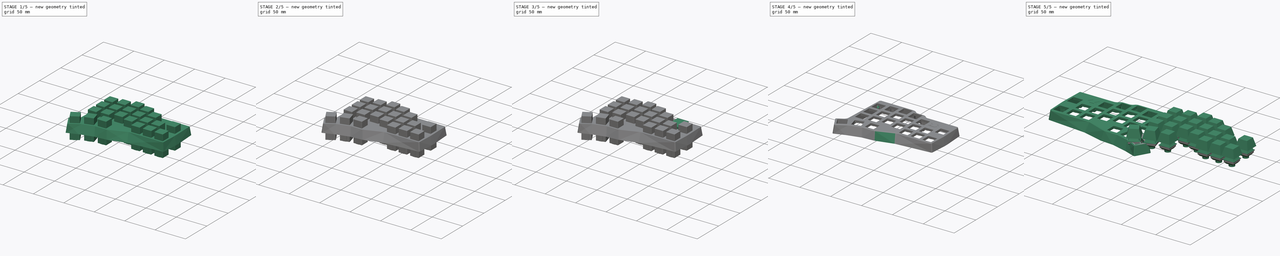
[diagram: build sequence overview — one tinted view per stage of 5, left to right]
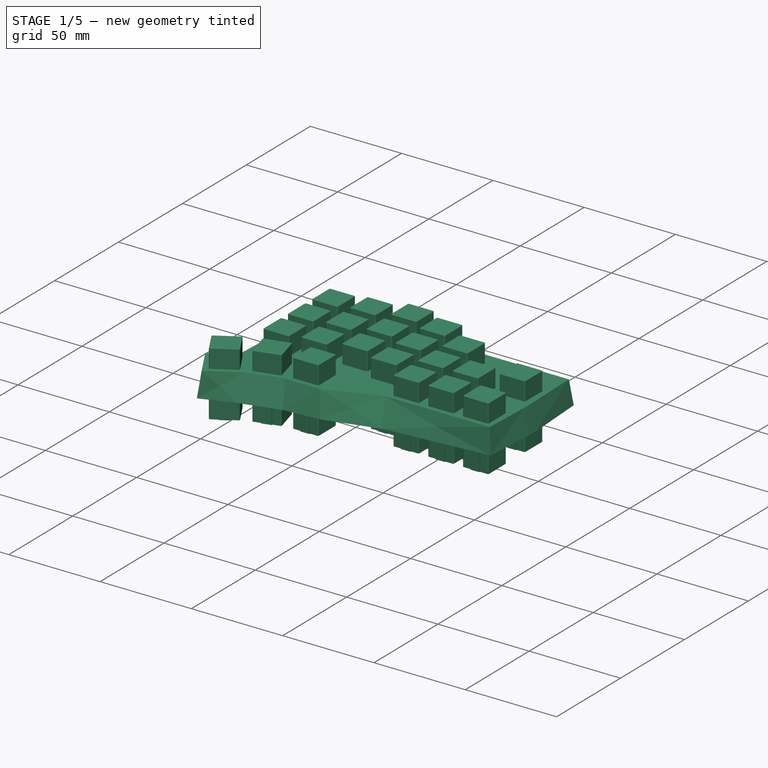
[diagram: stage 1 of 5 — iso view after this stage's code; geometry added in this stage tinted green]
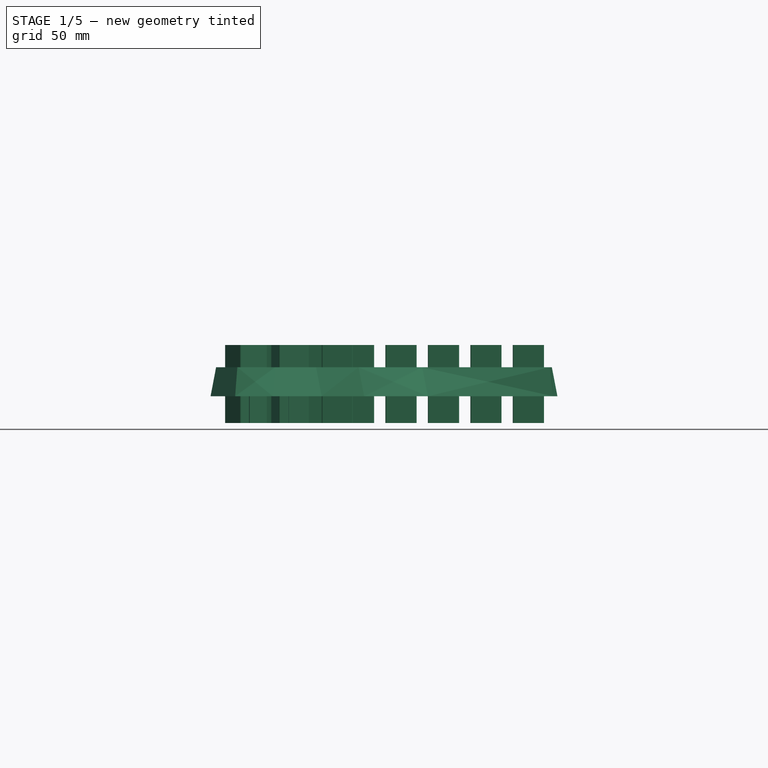
[diagram: stage 1 of 5 — front view after this stage's code; geometry added in this stage tinted green]
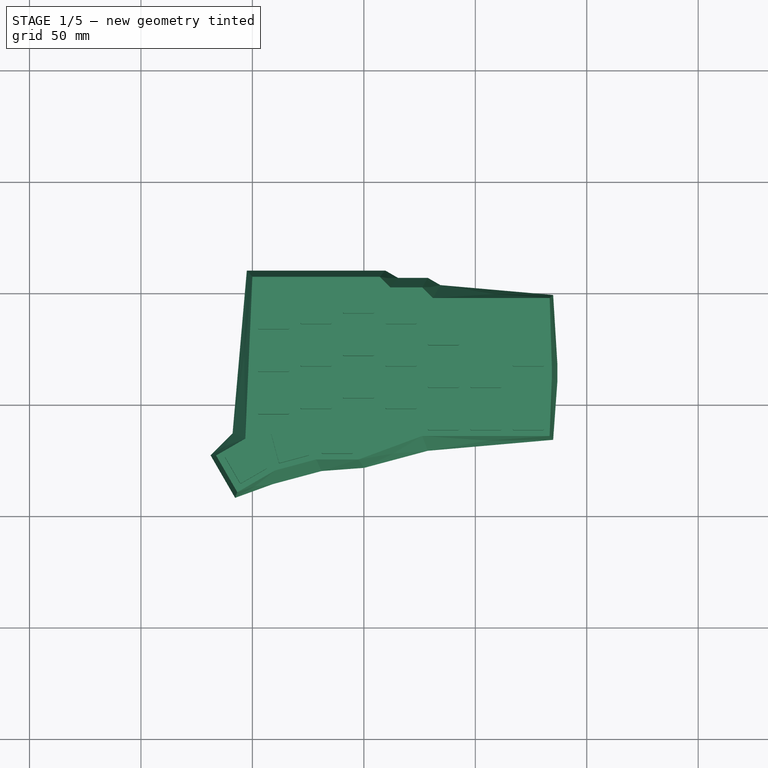
[diagram: stage 1 of 5 — top view after this stage's code; geometry added in this stage tinted green]
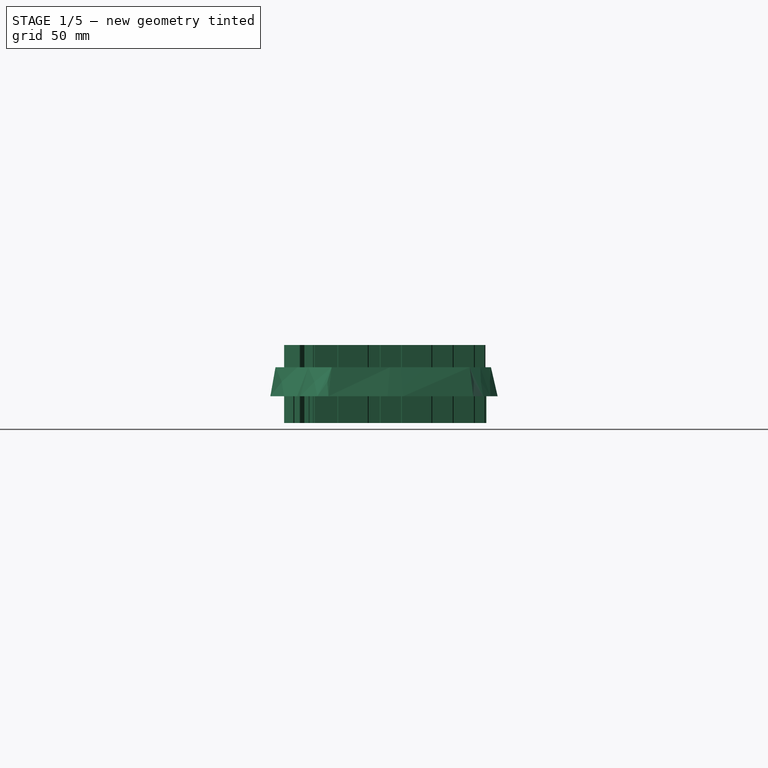
[diagram: stage 1 of 5 — right view after this stage's code; geometry added in this stage tinted green]
FCSTD DOCUMENT  (FreeCAD 0.21R33668 +26 (Git))
Label: plate6
License: All rights reserved
LicenseURL: http://en.wikipedia.org/wiki/All_rights_reserved
objects: Part::Feature×71, Part::FeaturePython×28, Sketcher::SketchObject×8, Part::Compound×7, App::Link×7, PartDesign::Pad×5, PartDesign::Body×4, PartDesign::Chamfer×4, Part::Chamfer×2, Spreadsheet::Sheet×1, PartDesign::ShapeBinder×1, PartDesign::FeatureBase×1, PartDesign::AdditiveLoft×1, PartDesign::Pocket×1, PartDesign::Fillet×1, Part::MultiFuse×1, Part::Cut×1, Part::Refine×1, Part::Box×1, Part::Mirroring×1
note: 150 computed .brp shape members not serialized (recipe doc carries the construction recipe); baked Part::Feature solids carry a one-line shape summary decoded from their .brp
EXTERNAL_REF file=HeatSetInsertHolder.FCStd obj=Body010
EXTERNAL_REF file=ScrewAndInsertCutout.FCStd obj=Body009
EXTERNAL_REF file=Shifty.FCStd obj=Body001
EXTERNAL_REF file=../components/prt-12639-35mm-trrs.FCStd obj=prt_12639_35mm_trrs
EXTERNAL_REF file=../components/MX_Switch.FCStd obj=switch_mx002
EXTERNAL_REF file=../components/RP2040_Zero.FCStd obj=Mesh002
EXTERNAL_REF file=MXCutout.FCStd obj=Body001

FEATURE [PartDesign::Body] Body003  label="TRRS-Cutout"
  Group = -> [Sketch006,Pad003]
  Origin = -> Origin003
  Tip = -> Pad003
FEATURE [Part::FeaturePython] Point023  # WARN: FeaturePython — macro-defined, semantics opaque (R4)
  Placement = pos=(130,-40.586,5.1758e-05) rot=(0,0,1;0rad)
  X = 130
  Y = -40.586
  Z = 5.1758e-05
FEATURE [Part::FeaturePython] Point024  # WARN: FeaturePython — macro-defined, semantics opaque (R4)
  Placement = pos=(77.5,-5,4.42659e-05) rot=(0,0,1;0rad)
  X = 77.5
  Y = -5
  Z = 4.42659e-05
FEATURE [Part::FeaturePython] Point025  # WARN: FeaturePython — macro-defined, semantics opaque (R4)
  Placement = pos=(23.5,3,1.2848e-05) rot=(0,0,1;0rad)
  X = 23.5
  Y = 3
  Z = 1.2848e-05
FEATURE [Part::FeaturePython] Point026  # WARN: FeaturePython — macro-defined, semantics opaque (R4)
  Placement = pos=(62,-65,7.86534e-06) rot=(0,0,1;0rad)
  X = 62
  Y = -65
  Z = 7.86534e-06
FEATURE [Part::FeaturePython] Point027  # WARN: FeaturePython — macro-defined, semantics opaque (R4)
  Placement = pos=(1.2,-60,-1.91352e-05) rot=(0,0,1;0rad)
  X = 1.2
  Y = -60
  Z = -1.91352e-05
FEATURE [Part::Compound] Compound004  label="ScrewComposite"
  Links = -> [Point023,Point024,Point025,Point026,Point027]
FEATURE [PartDesign::FeatureBase] BaseFeature
  BaseFeature = -> Compound004
FEATURE [PartDesign::AdditiveLoft] AdditiveLoft
  BaseFeature = -> BaseFeature
  Closed = false
  Profile = -> Sketch
  Ruled = false
  Sections = -> [Sketch001]
FEATURE [PartDesign::Pocket] Pocket
  BaseFeature = -> AdditiveLoft
  Direction = (0,0,-1)
  Length = 5
  Length2 = 5
  Profile = -> Sketch002
  ReferenceAxis = -> Sketch002 [N_Axis]
  Refine = true
  Type = 1
FEATURE [PartDesign::Body] Body  label="CaseSolid"
  BaseFeature = -> Compound004
  Group = -> [BaseFeature,ShapeBinder,Sketch,Sketch001,AdditiveLoft,Sketch002,Pocket,Chamfer,Fillet,Chamfer001,Sketch003,Pad,Sketch004,Pad001,Chamfer002,Chamfer006]
  Origin = -> Origin
  Tip = -> Chamfer006
FEATURE [Part::Feature] Solid049
  Placement = pos=(130,-40.586,5.1758e-05) rot=(0,0,-1;1.5708rad)
  shape: bbox 6.859 x 8 x 9.5 mm, 8 faces (baked)
FEATURE [Part::Feature] Solid050
  Placement = pos=(77.5,-5,4.42659e-05) rot=(0,0,-1;0.523599rad)
  shape: bbox 8.577 x 8.525 x 9.5 mm, 8 faces (baked)
FEATURE [Part::Feature] Solid051
  Placement = pos=(23.5,3,1.2848e-05) rot=(0,0,1;0rad)
  shape: bbox 8 x 6.859 x 9.5 mm, 8 faces (baked)
FEATURE [Part::Feature] Solid052
  Placement = pos=(62,-65,7.86534e-06) rot=(0,0,1;3.49066rad)
  shape: bbox 8.219 x 8.135 x 9.5 mm, 8 faces (baked)
FEATURE [Part::Feature] Solid053
  Placement = pos=(1.2,-60,-1.91352e-05) rot=(0,0,1;1.5708rad)
  shape: bbox 6.859 x 8 x 9.5 mm, 8 faces (baked)
FEATURE [Part::Compound] Compound008
  Links = -> [Solid053,Solid049,Solid050,Solid051,Solid052]
FEATURE [App::Link] Link009  label="MXCutoutR"
  LinkedObject = -> <external MXCutout.FCStd>#Body001
FEATURE [Part::Feature] Solid054
  Placement = pos=(-2.83728,-76.2629,-5.07343e-07) rot=(0,0,1;0.523599rad)
  shape: bbox 18.76 x 18.76 x 35 mm, 18 faces (baked)
FEATURE [Part::Feature] Solid055
  Placement = pos=(9.53,-9.53,4.06e-13) rot=(0,0,1;0rad)
  shape: bbox 14 x 15 x 35 mm, 18 faces (baked)
FEATURE [Part::Feature] Solid056
  Placement = pos=(9.53,-28.58,4.06e-13) rot=(0,0,1;0rad)
  shape: bbox 14 x 15 x 35 mm, 18 faces (baked)
FEATURE [Part::Feature] Solid057
  Placement = pos=(9.53001,-47.63,1.218e-12) rot=(0,0,1;0rad)
  shape: bbox 14 x 15 x 35 mm, 18 faces (baked)
FEATURE [Part::Feature] Solid058
  Placement = pos=(28.58,-7.14875,4.06e-13) rot=(0,0,1;0rad)
  shape: bbox 14 x 15 x 35 mm, 18 faces (baked)
FEATURE [Part::Feature] Solid059
  Placement = pos=(28.58,-26.1987,4.06e-13) rot=(0,0,1;0rad)
  shape: bbox 14 x 15 x 35 mm, 18 faces (baked)
FEATURE [Part::Feature] Solid060
  Placement = pos=(28.58,-45.2487,1.218e-12) rot=(0,0,1;0rad)
  shape: bbox 14 x 15 x 35 mm, 18 faces (baked)
FEATURE [Part::Feature] Solid061
  Placement = pos=(47.63,-2.38625,4.06e-13) rot=(0,0,1;0rad)
  shape: bbox 14 x 15 x 35 mm, 18 faces (baked)
FEATURE [Part::Feature] Solid062
  Placement = pos=(47.63,-21.4362,4.06e-13) rot=(0,0,1;0rad)
  shape: bbox 14 x 15 x 35 mm, 18 faces (baked)
FEATURE [Part::Feature] Solid063
  Placement = pos=(47.63,-40.4862,1.218e-12) rot=(0,0,1;0rad)
  shape: bbox 14 x 15 x 35 mm, 18 faces (baked)
FEATURE [Part::Feature] Solid064
  Placement = pos=(66.68,-7.14875,4.06e-13) rot=(0,0,1;0rad)
  shape: bbox 14 x 15 x 35 mm, 18 faces (baked)
FEATURE [Part::Feature] Solid065
  Placement = pos=(66.68,-26.1987,6.09e-13) rot=(0,0,1;0rad)
  shape: bbox 14 x 15 x 35 mm, 18 faces (baked)
FEATURE [Part::Feature] Solid066
  Placement = pos=(66.68,-45.2487,1.421e-12) rot=(0,0,1;0rad)
  shape: bbox 14 x 15 x 35 mm, 18 faces (baked)
FEATURE [Part::Feature] Solid067
  Placement = pos=(85.73,-16.6737,7.06e-13) rot=(0,0,1;0rad)
  shape: bbox 14 x 15 x 35 mm, 18 faces (baked)
FEATURE [Part::Feature] Solid068
  Placement = pos=(85.73,-35.7237,1.703e-12) rot=(0,0,1;0rad)
  shape: bbox 14 x 15 x 35 mm, 18 faces (baked)
FEATURE [Part::Feature] Solid069
  Placement = pos=(104.78,-35.7237,1.703e-12) rot=(0,0,1;0rad)
  shape: bbox 14 x 15 x 35 mm, 18 faces (baked)
FEATURE [Part::Feature] Solid070
  Placement = pos=(85.73,-54.7737,1.726e-12) rot=(0,0,1;0rad)
  shape: bbox 14 x 15 x 35 mm, 18 faces (baked)
FEATURE [Part::Feature] Solid071
  Placement = pos=(104.78,-54.7737,2.515e-12) rot=(0,0,1;0rad)
  shape: bbox 14 x 15 x 35 mm, 18 faces (baked)
FEATURE [Part::Feature] Solid072
  Placement = pos=(123.83,-54.7737,2.515e-12) rot=(0,0,1;0rad)
  shape: bbox 14 x 15 x 35 mm, 18 faces (baked)
FEATURE [Part::Feature] Solid073
  Placement = pos=(38.105,-65.2987,2.073e-12) rot=(0,0,1;0rad)
  shape: bbox 14 x 15 x 35 mm, 18 faces (baked)
FEATURE [Part::Feature] Solid074
  Placement = pos=(16.9093,-68.0836,-3.82784e-07) rot=(0,0,1;0.261799rad)
  shape: bbox 16.92 x 16.92 x 35 mm, 18 faces (baked)
FEATURE [Part::Feature] Solid075
  Placement = pos=(123.825,-26.1939,-3.963e-11) rot=(0,0,1;0rad)
  shape: bbox 14 x 15 x 35 mm, 18 faces (baked)
FEATURE [Part::Compound] Compound010  label="MXCutoutCrev2"
  Links = -> [Solid075,Solid054,Solid055,Solid056,Solid057,Solid058,Solid059,Solid060,Solid061,Solid062,Solid063,Solid064,Solid065,Solid066,Solid067,Solid068,Solid069,Solid070,Solid071,Solid072,Solid073,Solid074]
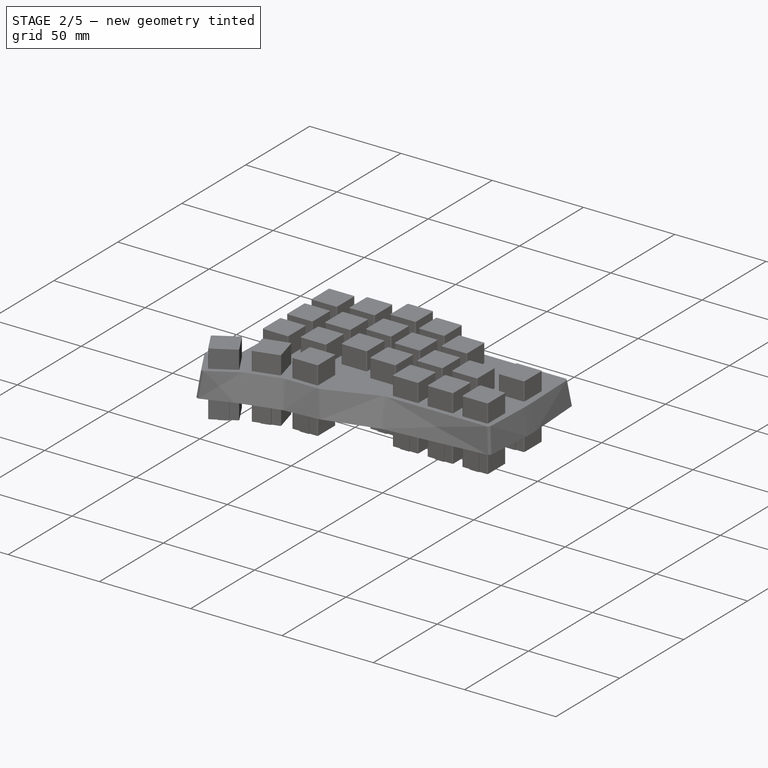
[diagram: stage 2 of 5 — iso view after this stage's code; geometry added in this stage tinted green]
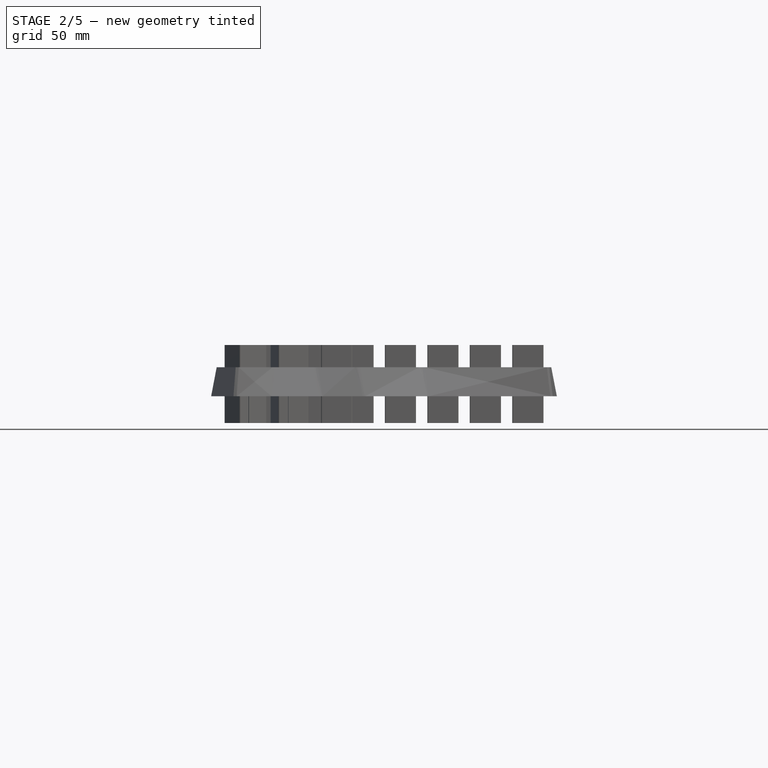
[diagram: stage 2 of 5 — front view after this stage's code; geometry added in this stage tinted green]
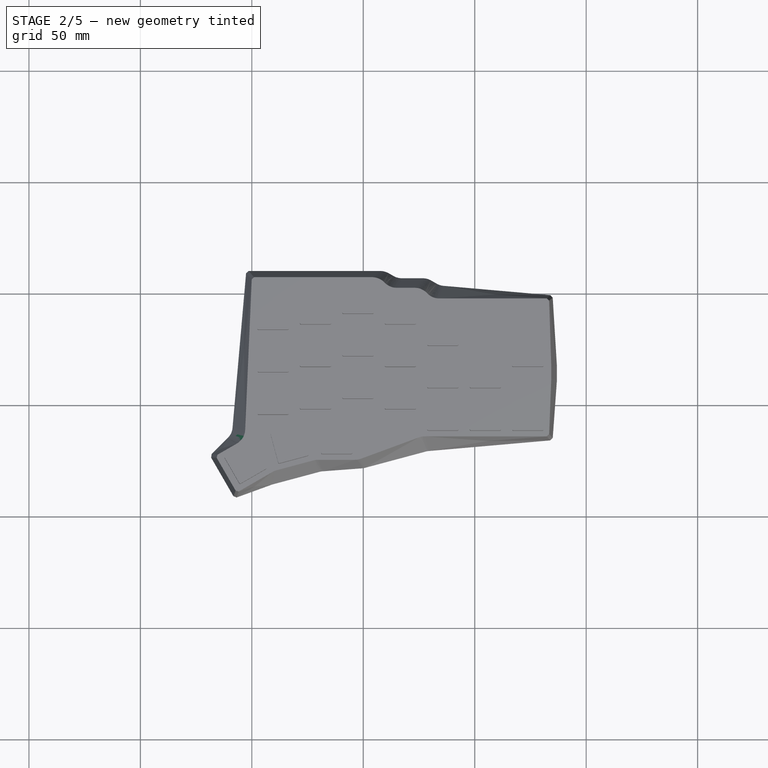
[diagram: stage 2 of 5 — top view after this stage's code; geometry added in this stage tinted green]
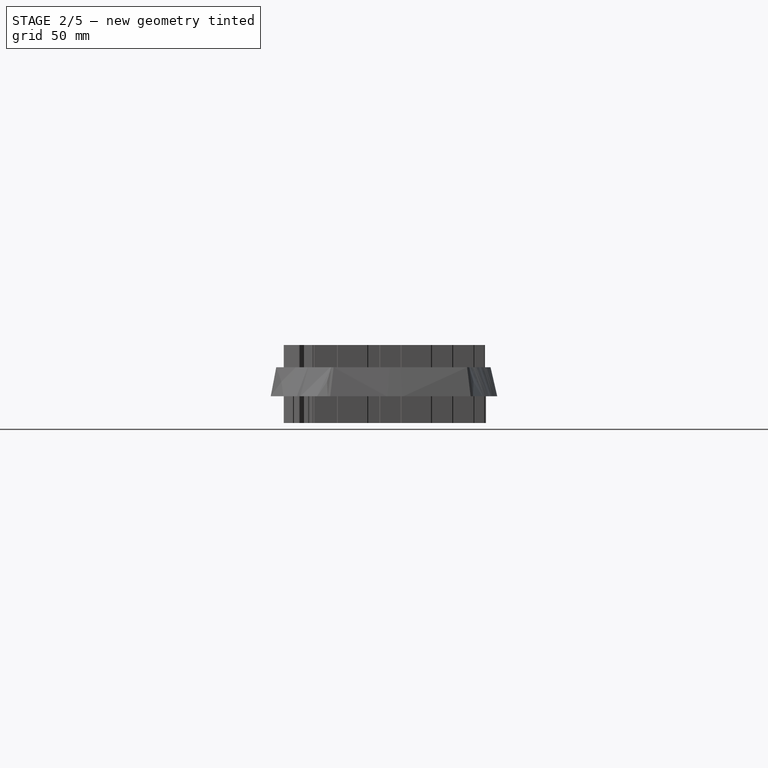
[diagram: stage 2 of 5 — right view after this stage's code; geometry added in this stage tinted green]
FEATURE [PartDesign::Chamfer] Chamfer
  Angle = 45
  Base = -> Pocket [Edge21,Edge31,Edge39,Edge49,Edge20]
  BaseFeature = -> Pocket
  ChamferType = 0
  FlipDirection = false
  Size = 1
  Size2 = 1
  SupportTransform = false
  UseAllEdges = false
FEATURE [PartDesign::Fillet] Fillet
  Base = -> Chamfer [Edge36,Edge40,Edge44,Edge48,Edge60,Edge62,Edge51,Edge47,Edge43,Edge38,Edge24]
  BaseFeature = -> Chamfer
  Radius = 8
  SupportTransform = false
  UseAllEdges = false
FEATURE [PartDesign::Chamfer] Chamfer001
  Angle = 45
  Base = -> Fillet [Edge142,Edge118,Edge117,Edge120,Edge122,Edge124,Edge130,Edge126,Edge128,Edge132,Edge134,Edge136,Edge140,Edge138]
  BaseFeature = -> Fillet
  ChamferType = 0
  FlipDirection = false
  Size = 1
  Size2 = 1
  SupportTransform = false
  UseAllEdges = false
FEATURE [Sketcher::SketchObject] Sketch018
  AttachmentOffset = pos=(0,0,-1) rot=(0,0,1;0rad)
  FullyConstrained = true
  MapMode = 5
  Placement = pos=(0,0,-1) rot=(0,0,1;0rad)
  Support = -> [XY_Plane009]
  sketch-geometry (9):
    g0: LineSegment StartX=-4 StartY=3.8589 StartZ=0 EndX=4 EndY=3.8589 EndZ=0
    g1: LineSegment StartX=4 StartY=3.8589 StartZ=0 EndX=2.94356 EndY=-1.02822 EndZ=0
    g2: LineSegment StartX=0.5 StartY=-3 StartZ=0 EndX=-0.5 EndY=-3 EndZ=0
    g3: LineSegment StartX=-2.94356 StartY=-1.02822 StartZ=0 EndX=-4 EndY=3.8589 EndZ=0
    g4: ArcOfCircle CenterX=-0.5 CenterY=-0.5 CenterZ=0 NormalX=0 NormalY=0 NormalZ=1 AngleXU=0 Radius=2.5 StartAngle=3.35449 EndAngle=4.71239
    g5: ArcOfCircle CenterX=0.5 CenterY=-0.5 CenterZ=0 NormalX=0 NormalY=0 NormalZ=1 AngleXU=0 Radius=2.5 StartAngle=4.71239 EndAngle=6.07029
    g6: GeomPoint X=0 Y=0 Z=0
    g7: LineSegment StartX=-0.5 StartY=-0.5 StartZ=0 EndX=0 EndY=0 EndZ=0
    g8: LineSegment StartX=0 StartY=0 StartZ=0 EndX=0.5 EndY=-0.5 EndZ=0
  constraints (21):
    c: Coincident(g0,g1)
    c: Coincident(g3,g0)
    c: Horizontal(g0)
    c: Horizontal(g2)
    c: Tangent(g3,g4) = 1.5708
    c: Tangent(g2,g4) = 1.5708
    c: Tangent(g2,g5) = 1.5708
    c: Tangent(g1,g5) = 1.5708
    c: Equal(g4,g5)
    c: Equal(g1,g3)
    c: Radius(g4) = 2.5
    c: DistanceX(g2,g2) = 1
    c: DistanceX(g0,g0) = 8
    c: Distance(g1) = 5
    c: Coincident(g7,g4)
    c: Coincident(g7,g6)
    c: Coincident(g8,g7)
    c: Coincident(g8,g5)
    c: Equal(g8,g7)
    c: DistanceY(g5,g7) = 0.5
    c: Coincident(g6,g-1)
FEATURE [PartDesign::Pad] Pad009
  Direction = (0,0,1)
  Length = 9.5
  Length2 = 10
  Profile = -> Sketch018
  ReferenceAxis = -> Sketch018 [N_Axis]
  Reversed = true
  Type = 0
  expr: Length = 12 mm - 1.5 mm - 1 mm
FEATURE [PartDesign::Body] Body009  label="HeatsetHolder"
  Group = -> [Sketch018,Pad009]
  Origin = -> Origin009
  Tip = -> Pad009
FEATURE [Part::Refine] Body010  label="HeatsetHolderR"
  Source = -> Body009
---- part MXCutout.FCStd = doc fcstd_bdefad09bd87 ----
FCSTD DOCUMENT  (FreeCAD 0.21R33668 +26 (Git))
Label: MXCutout
License: All rights reserved
LicenseURL: http://en.wikipedia.org/wiki/All_rights_reserved
objects: Sketcher::SketchObject×3, PartDesign::Pad×3, PartDesign::Mirrored×1, PartDesign::Fillet×1, PartDesign::Body×1, Part::Refine×1
note: 14 computed .brp shape members not serialized (recipe doc carries the construction recipe); baked Part::Feature solids carry a one-line shape summary decoded from their .brp

FEATURE [Sketcher::SketchObject] Sketch
  FullyConstrained = true
  MapMode = 5
  Support = -> [XY_Plane]
  sketch-geometry (4):
    g0: LineSegment StartX=-7 StartY=7 StartZ=0 EndX=7 EndY=7 EndZ=0
    g1: LineSegment StartX=7 StartY=7 StartZ=0 EndX=7 EndY=-7 EndZ=0
    g2: LineSegment StartX=7 StartY=-7 StartZ=0 EndX=-7 EndY=-7 EndZ=0
    g3: LineSegment StartX=-7 StartY=-7 StartZ=0 EndX=-7 EndY=7 EndZ=0
  constraints (11):
    c: Coincident(g0,g1)
    c: Coincident(g1,g2)
    c: Coincident(g2,g3)
    c: Coincident(g3,g0)
    c: Horizontal(g0)
    c: Horizontal(g2)
    c: Vertical(g1)
    c: Vertical(g3)
    c: Symmetric(g0,g1,g-1)
    c: Equal(g3,g0)
    c: DistanceX(g0,g0) = 14
FEATURE [PartDesign::Pad] Pad
  Direction = (0,0,1)
  Length = 25
  Length2 = 10
  Profile = -> Sketch
  ReferenceAxis = -> Sketch [N_Axis]
  Reversed = true
  Type = 0
FEATURE [Sketcher::SketchObject] Sketch001
  ExternalGeometry = -> [Pad]
  FullyConstrained = true
  MapMode = 5
  Placement = pos=(0,7,0) rot=(0,0.707107,0.707107;3.14159rad)
  Support = -> [Pad]
  sketch-geometry (5):
    g0: LineSegment StartX=2.5 StartY=-25 StartZ=0 EndX=-2.5 EndY=-25 EndZ=0
    g1: LineSegment StartX=-2.5 StartY=-25 StartZ=0 EndX=-2.5 EndY=-1.4 EndZ=0
    g2: LineSegment StartX=-2.5 StartY=-1.4 StartZ=0 EndX=0 EndY=-1.4 EndZ=0
    g3: LineSegment StartX=0 StartY=-1.4 StartZ=0 EndX=2.5 EndY=-1.4 EndZ=0
    g4: LineSegment StartX=2.5 StartY=-25 StartZ=0 EndX=2.5 EndY=-1.4 EndZ=0
  constraints (15):
    c: Coincident(g0,g1)
    c: Horizontal(g0)
    c: DistanceX(g0,g0) = 5
    c: Coincident(g2,g1)
    c: Equal(g3,g2)
    c: Coincident(g3,g2)
    c: Vertical(g1)
    c: Coincident(g4,g0)
    c: Coincident(g4,g3)
    c: Vertical(g4)
    c: Horizontal(g2)
    c: Horizontal(g3)
    c: DistanceY(g3,g-1) = 1.4
    c: Horizontal(g0,g-3)
    c: Vertical(g2,g-1)
FEATURE [PartDesign::Pad] Pad001
  BaseFeature = -> Pad
  Direction = (0,1,-2e-16)
  Length = 0.5
  Length2 = 10
  Profile = -> Sketch001
  ReferenceAxis = -> Sketch001 [N_Axis]
  Type = 0
FEATURE [PartDesign::Mirrored] Mirrored
  BaseFeature = -> Pad001
  MirrorPlane = -> XZ_Plane
  Originals = -> [Pad001]
FEATURE [Sketcher::SketchObject] Sketch002
  ExternalGeometry = -> [Mirrored]
  FullyConstrained = true
  MapMode = 5
  Support = -> [Mirrored]
  sketch-geometry (4):
    g0: LineSegment StartX=-7 StartY=7 StartZ=0 EndX=7 EndY=7 EndZ=0
    g1: LineSegment StartX=7 StartY=7 StartZ=0 EndX=7 EndY=-7 EndZ=0
    g2: LineSegment StartX=7 StartY=-7 StartZ=0 EndX=-7 EndY=-7 EndZ=0
    g3: LineSegment StartX=-7 StartY=-7 StartZ=0 EndX=-7 EndY=7 EndZ=0
  constraints (10):
    c: Coincident(g0,g1)
    c: Coincident(g1,g2)
    c: Coincident(g2,g3)
    c: Coincident(g3,g0)
    c: Horizontal(g0)
    c: Horizontal(g2)
    c: Vertical(g1)
    c: Vertical(g3)
    c: Coincident(g0,g-3)
    c: Coincident(g1,g-4)
FEATURE [PartDesign::Pad] Pad002
  BaseFeature = -> Mirrored
  Direction = (0,0,1)
  Length = 10
  Length2 = 10
  Profile = -> Sketch002
  ReferenceAxis = -> Sketch002 [N_Axis]
  Refine = true
  Type = 0
FEATURE [PartDesign::Fillet] Fillet
  Base = -> Pad002 [Edge14,Edge16,Edge20,Edge36]
  BaseFeature = -> Pad002
  Radius = 0.5
  SupportTransform = false
  UseAllEdges = false
FEATURE [PartDesign::Body] Body  label="MXCutout"
  Group = -> [Sketch,Pad,Sketch001,Pad001,Mirrored,Sketch002,Pad002,Fillet]
  Origin = -> Origin
  Tip = -> Pad002
FEATURE [Part::Refine] Body001  label="MXCutoutR"
  Source = -> Fillet
---- part ScrewAndInsertCutout.FCStd = doc fcstd_e0578ad271e4 ----
FCSTD DOCUMENT  (FreeCAD 0.21R33668 +26 (Git))
Label: ScrewAndInsertCutout
License: All rights reserved
LicenseURL: http://en.wikipedia.org/wiki/All_rights_reserved
objects: Sketcher::SketchObject×4, PartDesign::Pad×2, PartDesign::AdditiveLoft×1, PartDesign::Body×1, Part::Refine×1, Spreadsheet::Sheet×1
note: 12 computed .brp shape members not serialized (recipe doc carries the construction recipe); baked Part::Feature solids carry a one-line shape summary decoded from their .brp

FEATURE [Sketcher::SketchObject] Sketch014
  AttachmentOffset = pos=(0,0,-5) rot=(0,0,1;0rad)
  FullyConstrained = true
  MapMode = 5
  Placement = pos=(0,0,-5) rot=(0,0,1;0rad)
  Support = -> [XY_Plane008]
  expr: Constraints[1] = <<S>>.hsDia
  sketch-geometry (1):
    g0: Circle CenterX=0 CenterY=0 CenterZ=0 NormalX=0 NormalY=0 NormalZ=1 AngleXU=0 Radius=1.75
  constraints (2):
    c: Coincident(g0,g-1)
    c: Diameter(g0) = 3.5
FEATURE [Sketcher::SketchObject] Sketch015
  AttachmentOffset = pos=(0,0,-5) rot=(0,0,1;0rad)
  FullyConstrained = true
  MapMode = 5
  Placement = pos=(0,0,-5) rot=(0,0,1;0rad)
  Support = -> [XY_Plane008]
  expr: .AttachmentOffset.Base.z = <<S>>.hsHei
  expr: Constraints[1] = <<S>>.hsDia
  sketch-geometry (1):
    g0: Circle CenterX=0 CenterY=0 CenterZ=0 NormalX=0 NormalY=0 NormalZ=1 AngleXU=0 Radius=1.75
  constraints (2):
    c: Coincident(g0,g-1)
    c: Diameter(g0) = 3.5
FEATURE [Sketcher::SketchObject] Sketch016
  AttachmentOffset = pos=(0,0,-9) rot=(0,0,1;0rad)
  FullyConstrained = true
  MapMode = 5
  Placement = pos=(0,0,-9) rot=(0,0,1;0rad)
  Support = -> [XY_Plane008]
  expr: .AttachmentOffset.Base.z = <<S>>.hslHei
  expr: Constraints[1] = <<S>>.hslDia
  sketch-geometry (1):
    g0: Circle CenterX=0 CenterY=0 CenterZ=0 NormalX=0 NormalY=0 NormalZ=1 AngleXU=0 Radius=2.5
  constraints (2):
    c: Coincident(g0,g-1)
    c: Diameter(g0) = 5
FEATURE [PartDesign::AdditiveLoft] AdditiveLoft001  label="AdditiveLoft"
  Closed = false
  Profile = -> Sketch015
  Ruled = false
  Sections = -> [Sketch016]
FEATURE [Sketcher::SketchObject] Sketch017
  AttachmentOffset = pos=(0,0,-9) rot=(0,0,1;0rad)
  FullyConstrained = true
  MapMode = 5
  Placement = pos=(0,0,-9) rot=(0,0,1;0rad)
  Support = -> [XY_Plane008]
  expr: Constraints[1] = <<S>>.scrDia
  sketch-geometry (1):
    g0: Circle CenterX=0 CenterY=0 CenterZ=0 NormalX=0 NormalY=0 NormalZ=1 AngleXU=0 Radius=1.5
  constraints (2):
    c: Coincident(g0,g-1)
    c: Diameter(g0) = 3
FEATURE [PartDesign::Pad] Pad007
  BaseFeature = -> AdditiveLoft001
  Direction = (0,0,1)
  Length = 20
  Length2 = 10
  Profile = -> Sketch017
  ReferenceAxis = -> Sketch017 [N_Axis]
  Reversed = true
  Type = 0
  expr: Length = <<S>>.scrHei
FEATURE [PartDesign::Pad] Pad008
  BaseFeature = -> Pad007
  Direction = (0,0,1)
  Length = 3
  Length2 = 10
  Profile = -> Sketch014
  ReferenceAxis = -> Sketch014 [N_Axis]
  Type = 0
FEATURE [PartDesign::Body] Body008  label="ScrewAndInsert"
  Group = -> [Sketch014,Sketch015,Sketch016,Sketch017,AdditiveLoft001,Pad007,Pad008]
  Origin = -> Origin008
  Tip = -> Pad008
FEATURE [Part::Refine] Body009  label="ScrewAndInsertR"
  Source = -> Body008
FEATURE [Spreadsheet::Sheet] Spreadsheet  label="S"
  cells = A1='Screw Diameter; B1(scrDia)==3 mm; C1='M3 hex countersunk; D1='Screw Height; E1(scrHei)==20 mm; F1='Through all to cut through bottom plate; A2='Heatset Loft; B2(hslDia)==5 mm; D2='Loft Height; E2(hslHei)==0 mm - 9 mm; A3='HeatsetDiameter; B3(hsDia)==3.5 mm; D3='Insert Height; E3(hsHei)==0 mm - 5 mm
---- part Shifty.FCStd = doc fcstd_d87953b521b2 ----
FCSTD DOCUMENT  (FreeCAD 0.21R33668 +26 (Git))
Label: Shifty
License: All rights reserved
LicenseURL: http://en.wikipedia.org/wiki/All_rights_reserved
objects: Sketcher::SketchObject×3, PartDesign::Pad×3, PartDesign::LinearPattern×1, PartDesign::Body×1, Part::Refine×1
note: 12 computed .brp shape members not serialized (recipe doc carries the construction recipe); baked Part::Feature solids carry a one-line shape summary decoded from their .brp

FEATURE [Sketcher::SketchObject] Sketch
  FullyConstrained = true
  MapMode = 5
  Support = -> [XY_Plane]
  sketch-geometry (4):
    g0: LineSegment StartX=-9.5 StartY=9.5 StartZ=0 EndX=9.5 EndY=9.5 EndZ=0
    g1: LineSegment StartX=9.5 StartY=9.5 StartZ=0 EndX=9.5 EndY=-9.5 EndZ=0
    g2: LineSegment StartX=9.5 StartY=-9.5 StartZ=0 EndX=-9.5 EndY=-9.5 EndZ=0
    g3: LineSegment StartX=-9.5 StartY=-9.5 StartZ=0 EndX=-9.5 EndY=9.5 EndZ=0
  constraints (11):
    c: Coincident(g0,g1)
    c: Coincident(g1,g2)
    c: Coincident(g2,g3)
    c: Coincident(g3,g0)
    c: Horizontal(g0)
    c: Horizontal(g2)
    c: Vertical(g1)
    c: Vertical(g3)
    c: Symmetric(g0,g1,g-1)
    c: Equal(g3,g0)
    c: DistanceX(g0,g0) = 19
FEATURE [Sketcher::SketchObject] Sketch001
  FullyConstrained = false
  MapMode = 5
  Support = -> [XY_Plane]
  sketch-geometry (18):
    g0: LineSegment StartX=-9.5 StartY=9.5 StartZ=0 EndX=9.5 EndY=9.5 EndZ=0
    g1: LineSegment StartX=9.5 StartY=9.5 StartZ=0 EndX=9.5 EndY=-9.5 EndZ=0
    g2: LineSegment StartX=9.5 StartY=-9.5 StartZ=0 EndX=-9.5 EndY=-9.5 EndZ=0
    g3: LineSegment StartX=-9.5 StartY=-9.5 StartZ=0 EndX=-9.5 EndY=9.5 EndZ=0
    g4: LineSegment StartX=-9.18334 StartY=4.33111 StartZ=0 EndX=-5.81879 EndY=0.321394 EndZ=0
    g5: LineSegment StartX=-5.81879 StartY=-0.321394 StartZ=0 EndX=-9.18334 EndY=-4.33111 EndZ=0
    g6: LineSegment StartX=-9.15387 StartY=-5.00606 StartZ=0 EndX=-8.44407 EndY=-5.71586 EndZ=0
    g7: LineSegment StartX=-7.70749 StartY=-5.6837 StartZ=0 EndX=-3.20798 EndY=-0.321394 EndZ=0
    g8: LineSegment StartX=-3.20798 StartY=0.321394 StartZ=0 EndX=-7.70749 EndY=5.6837 EndZ=0
    g9: LineSegment StartX=-8.44407 StartY=5.71586 StartZ=0 EndX=-9.15387 EndY=5.00606 EndZ=0
    g10: ArcOfCircle CenterX=-8.80032 CenterY=4.6525 CenterZ=0 NormalX=0 NormalY=0 NormalZ=1 AngleXU=0 Radius=0.5 StartAngle=2.35619 EndAngle=3.83972
    g11: ArcOfCircle CenterX=-8.09051 CenterY=5.36231 CenterZ=0 NormalX=0 NormalY=0 NormalZ=1 AngleXU=0 Radius=0.5 StartAngle=0.698132 EndAngle=2.35619
    g12: ArcOfCircle CenterX=-8.80032 CenterY=-4.6525 CenterZ=0 NormalX=0 NormalY=0 NormalZ=1 AngleXU=0 Radius=0.5 StartAngle=2.44346 EndAngle=3.92699
    g13: ArcOfCircle CenterX=-8.09051 CenterY=-5.36231 CenterZ=0 NormalX=0 NormalY=0 NormalZ=1 AngleXU=0 Radius=0.5 StartAngle=3.92699 EndAngle=5.58505
    g14: ArcOfCircle CenterX=-3.591 CenterY=-2.4e-15 CenterZ=0 NormalX=0 NormalY=0 NormalZ=1 AngleXU=0 Radius=0.5 StartAngle=5.58505 EndAngle=6.98132
    g15: GeomPoint X=-2.9383 Y=-2.7e-15 Z=0
    g16: ArcOfCircle CenterX=-6.20181 CenterY=0 CenterZ=0 NormalX=0 NormalY=0 NormalZ=1 AngleXU=0 Radius=0.5 StartAngle=5.58505 EndAngle=6.98132
    g17: GeomPoint X=-5.54911 Y=-2.7e-15 Z=0
  constraints (44):
    c: Coincident(g0,g1)
    c: Coincident(g1,g2)
    c: Coincident(g2,g3)
    c: Coincident(g3,g0)
    c: Horizontal(g0)
    c: Horizontal(g2)
    c: Vertical(g1)
    c: Vertical(g3)
    c: Symmetric(g0,g1,g-1)
    c: Equal(g3,g0)
    c: DistanceX(g0,g0) = 19
    c: Tangent(g9,g10) = -1.5708
    c: Tangent(g4,g10) = -1.5708
    c: Tangent(g9,g11) = -1.5708
    c: Tangent(g8,g11) = -1.5708
    c: Tangent(g5,g12) = -1.5708
    c: Tangent(g6,g12) = -1.5708
    c: Tangent(g7,g13) = -1.5708
    c: Tangent(g6,g13) = -1.5708
    c: Equal(g12,g13)
    c: Equal(g12,g10)
    c: Equal(g11,g10)
    c: Horizontal(g17,g15)
    c: Equal(g9,g6)
    c: Distance(g17,g7) = 2
    c: Parallel(g4,g8)
    c: Parallel(g5,g7)
    c: Angle(g-1,g9) = 0.785398
    c: Angle(g6,g-1) = 0.785398
    c: PointOnObject(g15,g8)
    c: PointOnObject(g15,g7)
    c: Tangent(g8,g14) = -1.5708
    c: Tangent(g7,g14) = -1.5708
    c: Radius(g14) = 0.5
    c: PointOnObject(g17,g4)
    c: PointOnObject(g17,g5)
    c: Tangent(g4,g16) = 1.5708
    c: Tangent(g5,g16) = 1.5708
    c: Equal(g16,g14)
    c: Equal(g4,g5)
    c: Angle(g-1,g8) = 2.26893
    c: Horizontal(g16,g-1)
    c: Radius(g11) = 0.5
    c: Distance(g8) = 7
FEATURE [PartDesign::Pad] Pad
  Direction = (0,0,1)
  Length = 25
  Length2 = 10
  Profile = -> Sketch
  ReferenceAxis = -> Sketch [N_Axis]
  Type = 0
FEATURE [PartDesign::Pad] Pad001
  BaseFeature = -> Pad
  Direction = (0,0,1)
  Length = 0.4
  Length2 = 10
  Profile = -> Sketch001
  ReferenceAxis = -> Sketch001 [N_Axis]
  Reversed = true
  Type = 0
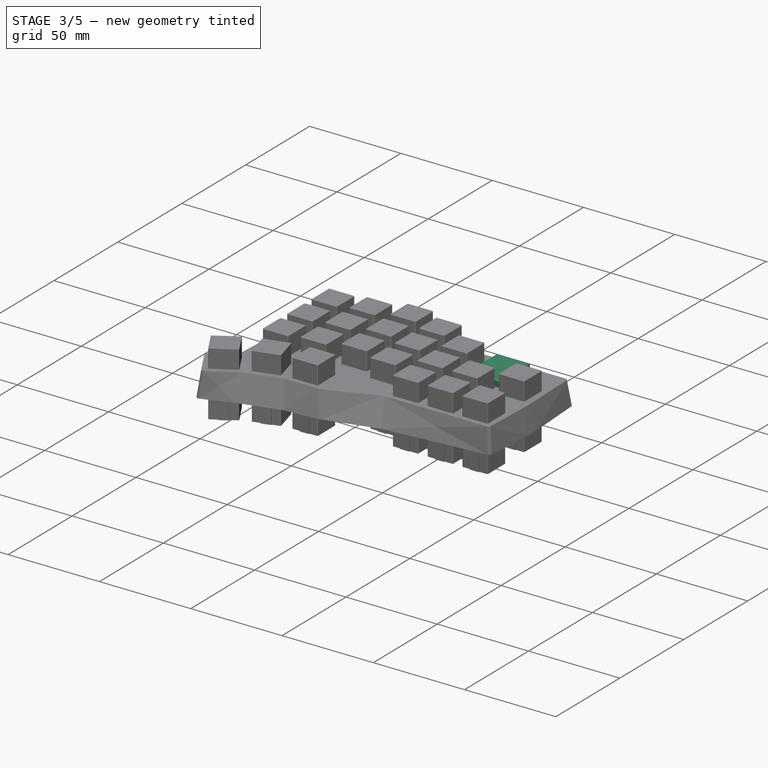
[diagram: stage 3 of 5 — iso view after this stage's code; geometry added in this stage tinted green]
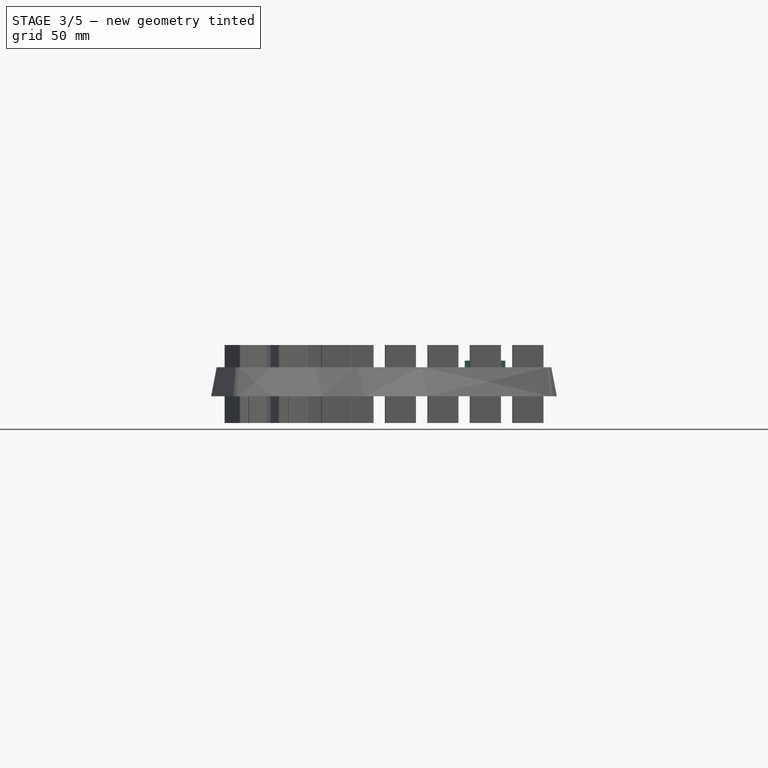
[diagram: stage 3 of 5 — front view after this stage's code; geometry added in this stage tinted green]
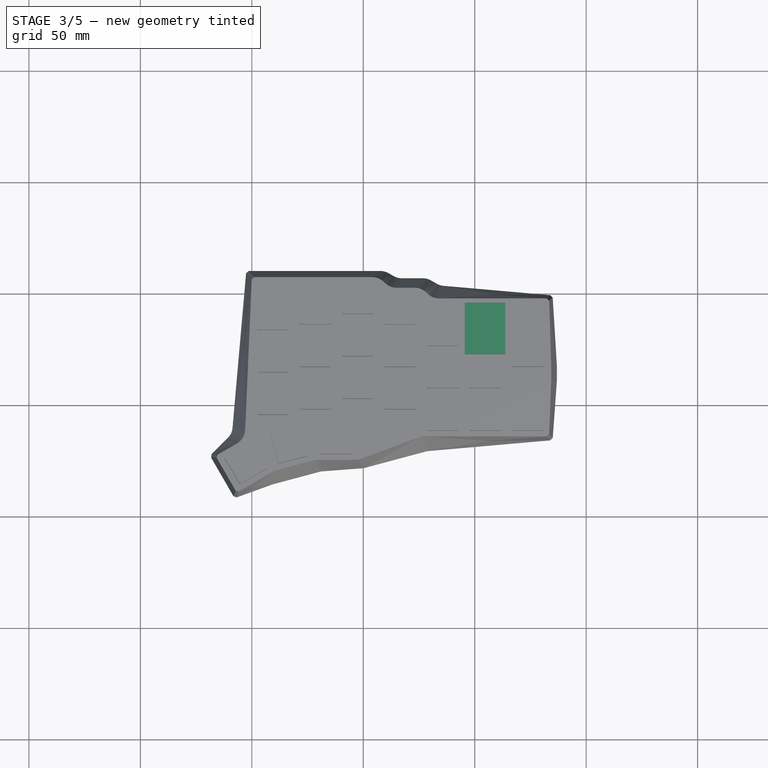
[diagram: stage 3 of 5 — top view after this stage's code; geometry added in this stage tinted green]
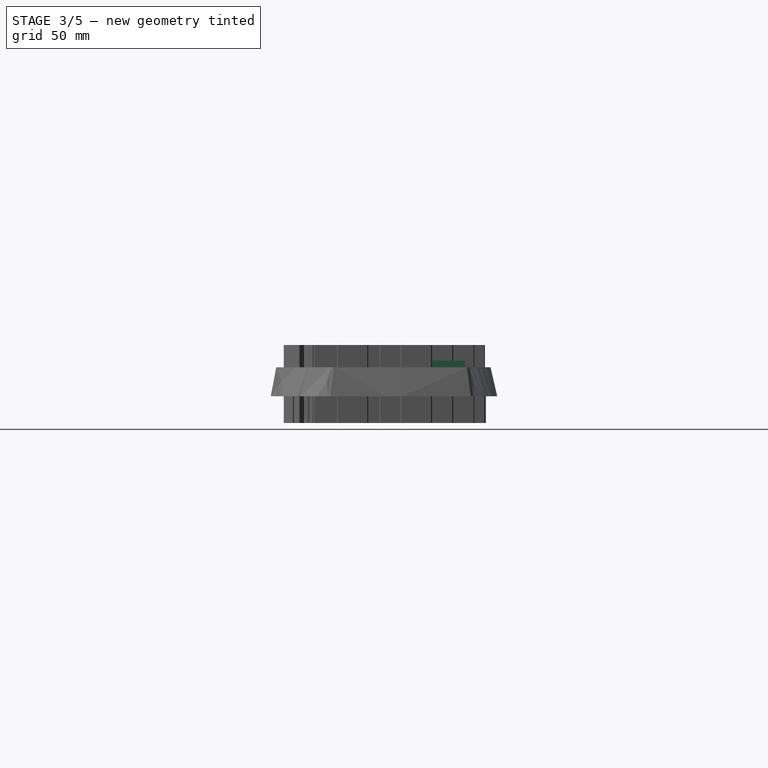
[diagram: stage 3 of 5 — right view after this stage's code; geometry added in this stage tinted green]
FEATURE [PartDesign::Pad] Pad
  BaseFeature = -> Chamfer001
  Direction = (0,0,1)
  Length = 3
  Length2 = 10
  Profile = -> Sketch003
  ReferenceAxis = -> Sketch003 [N_Axis]
  Reversed = true
  Type = 0
FEATURE [Sketcher::SketchObject] Sketch004
  FullyConstrained = true
  MapMode = 5
  Placement = pos=(0,0,-3.6) rot=(1,0,0;3.14159rad)
  Support = -> [Pad]
  expr: Constraints[8] = <<S>>.trsOffset
  sketch-geometry (6):
    g0: LineSegment StartX=13 StartY=1.5 StartZ=0 EndX=19 EndY=1.5 EndZ=0
    g1: LineSegment StartX=19 StartY=1.5 StartZ=0 EndX=19 EndY=-4 EndZ=0
    g2: LineSegment StartX=19 StartY=-4 StartZ=0 EndX=13 EndY=-4 EndZ=0
    g3: LineSegment StartX=13 StartY=-4 StartZ=0 EndX=13 EndY=1.5 EndZ=0
    g4: GeomPoint X=1.54 Y=-4 Z=0
    g5: LineSegment StartX=13 StartY=-4 StartZ=0 EndX=1.54 EndY=-4 EndZ=0
  constraints (17):
    c: Coincident(g0,g1)
    c: Coincident(g1,g2)
    c: Coincident(g2,g3)
    c: Coincident(g3,g0)
    c: Horizontal(g0)
    c: Horizontal(g2)
    c: Vertical(g1)
    c: Vertical(g3)
    c: DistanceX(g0) = 13
    c: DistanceY(g0) = 1.5
    c: DistanceX(g0,g0) = 6
    c: DistanceY(g1,g1) = 5.5
    c: DistanceX(g-1,g4) = 1.54
    c: Horizontal(g4,g2)
    c: Coincident(g5,g2)
    c: Coincident(g4,g5)
    c: DistanceX(g5,g5) = 11.46
FEATURE [PartDesign::Pad] Pad001
  BaseFeature = -> Pad
  Direction = (0,0,-1)
  Length = 5
  Length2 = 10
  Profile = -> Sketch004
  ReferenceAxis = -> Sketch004 [N_Axis]
  Type = 0
FEATURE [PartDesign::Chamfer] Chamfer002
  Angle = 45
  Base = -> Pad001 [Edge234]
  BaseFeature = -> Pad001
  ChamferType = 1
  FlipDirection = false
  Size = 3
  Size2 = 4
  SupportTransform = false
  UseAllEdges = false
FEATURE [App::Link] Link  label="HeatsetHolderR"
  LinkedObject = -> <external HeatSetInsertHolder.FCStd>#Body010
FEATURE [App::Link] Link001  label="ScrewAndInsertR"
  LinkedObject = -> <external ScrewAndInsertCutout.FCStd>#Body009
FEATURE [Part::FeaturePython] PointArray  label="ScrewCutouts"  # Draft array (typed FeaturePython)
  AlwaysSyncPlacement = false
  Base = -> Link001
  Count = 5
  ExpandArray = false
  Placement = pos=(0,0,-1.5) rot=(0,0,1;0rad)
  PlacementList = 5 placements: [(130,-40.586,5.1758e-05),(77.5,-5,4.42659e-05),(23.5,3,1.2848e-05),(62,-65,7.86534e-06),(1.2,-60,-1.91352e-05)]
  PointObject = -> Compound004
  ScaleList = (5) [(1,1,1),(1,1,1),(1,1,1),(1,1,1),(1,1,1)]
FEATURE [App::Link] Link003  label="ShiftyStampR"
  LinkPlacement = pos=(104.5,-17,0) rot=(0,0,1;0rad)
  LinkedObject = -> <external Shifty.FCStd>#Body001
  Placement = pos=(104.5,-17,0) rot=(0,0,1;0rad)
  Scale = 0.8
  ScaleVector = (0.8,0.8,0.8)
FEATURE [App::Link] Link004  label="prt-12639-35mm-trrs"
  LinkPlacement = pos=(13.5,-1.75,-2.5) rot=(0,1,0;3.14159rad)
  LinkedObject = -> <external ../components/prt-12639-35mm-trrs.FCStd>#prt_12639_35mm_trrs
  Placement = pos=(13.5,-1.75,-2.5) rot=(0,1,0;3.14159rad)
FEATURE [App::Link] Link007  label="switch_mx002"
  LinkedObject = -> <external ../components/MX_Switch.FCStd>#switch_mx002
FEATURE [Sketcher::SketchObject] Sketch007
  FullyConstrained = false
  MapMode = 5
  Support = -> [XY_Plane004]
  sketch-geometry (6):
    g0: LineSegment StartX=113.7 StartY=-27.5 StartZ=0 EndX=95.5 EndY=-27.5 EndZ=0
    g1: LineSegment StartX=95.5 StartY=-27.5 StartZ=0 EndX=95.5 EndY=-4.3 EndZ=0
    g2: LineSegment StartX=95.5 StartY=-4.3 StartZ=0 EndX=113.7 EndY=-4.3 EndZ=0
    g3: LineSegment StartX=113.7 StartY=-4.3 StartZ=0 EndX=113.7 EndY=-27.5 EndZ=0
    g4: GeomPoint X=104.6 Y=-15.9 Z=0
    g5: GeomPoint X=104.6 Y=-27.6247 Z=0
  constraints (14):
    c: Coincident(g0,g1)
    c: Coincident(g1,g2)
    c: Coincident(g2,g3)
    c: Coincident(g3,g0)
    c: Horizontal(g0)
    c: Horizontal(g2)
    c: Vertical(g1)
    c: Vertical(g3)
    c: Symmetric(g0,g2,g4)
    c: DistanceX(g0,g0) = 18.2
    c: Vertical(g5,g4)
    c: DistanceX(g4) = 104.6
    c: DistanceY(g4) = -15.9
    c: DistanceY(g3,g3) = 23.2
FEATURE [PartDesign::Pad] Pad004
  Direction = (0,0,1)
  Length = 3
  Length2 = 10
  Profile = -> Sketch007
  ReferenceAxis = -> Sketch007 [N_Axis]
  Type = 0
FEATURE [PartDesign::Body] Body004  label="MCU-Cutout"
  Group = -> [Sketch007,Pad004]
  Origin = -> Origin004
  Placement = pos=(0,0,-4.5) rot=(0,0,1;0rad)
  Tip = -> Pad004
FEATURE [App::Link] Link008  label="RP2040-R"
  LinkPlacement = pos=(113.6,-27.6,-4.5) rot=(0,1,0;3.14159rad)
  LinkedObject = -> <external ../components/RP2040_Zero.FCStd>#Mesh002
  Placement = pos=(113.6,-27.6,-4.5) rot=(0,1,0;3.14159rad)
FEATURE [PartDesign::Chamfer] Chamfer006
  Angle = 45
  Base = -> Chamfer002 [Edge141,Edge132,Edge129,Edge120]
  BaseFeature = -> Chamfer002
  ChamferType = 0
  FlipDirection = false
  Size = 1
  Size2 = 1
  SupportTransform = false
  UseAllEdges = false
FEATURE [Part::MultiFuse] Fusion
  Shapes = -> [Body,Compound008]
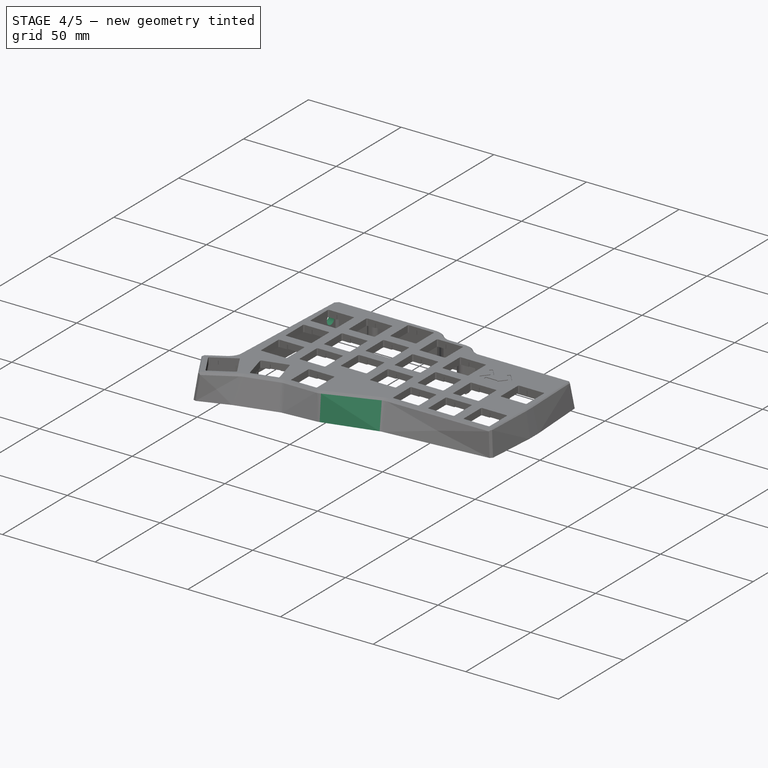
[diagram: stage 4 of 5 — iso view after this stage's code; geometry added in this stage tinted green]
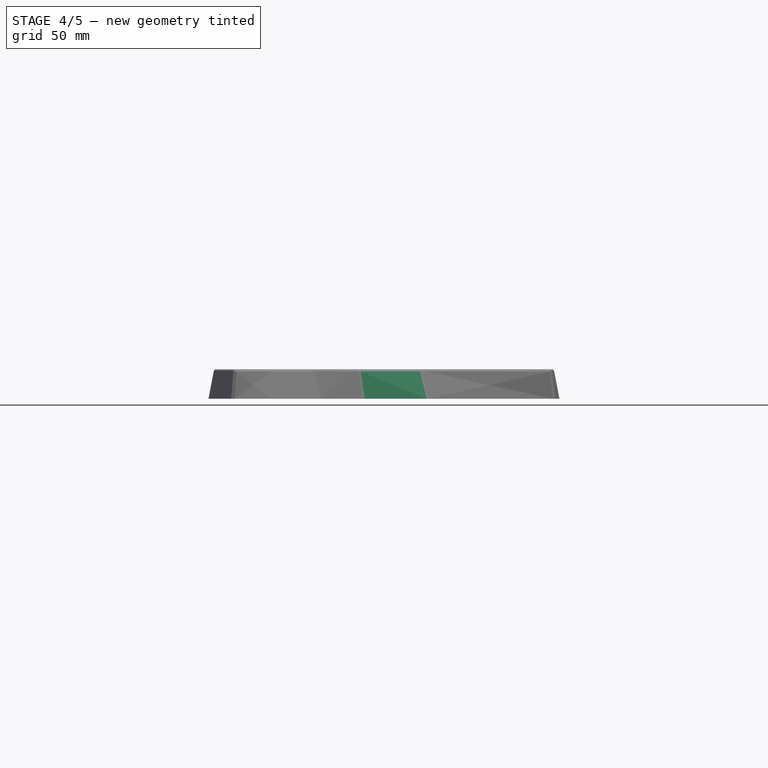
[diagram: stage 4 of 5 — front view after this stage's code; geometry added in this stage tinted green]
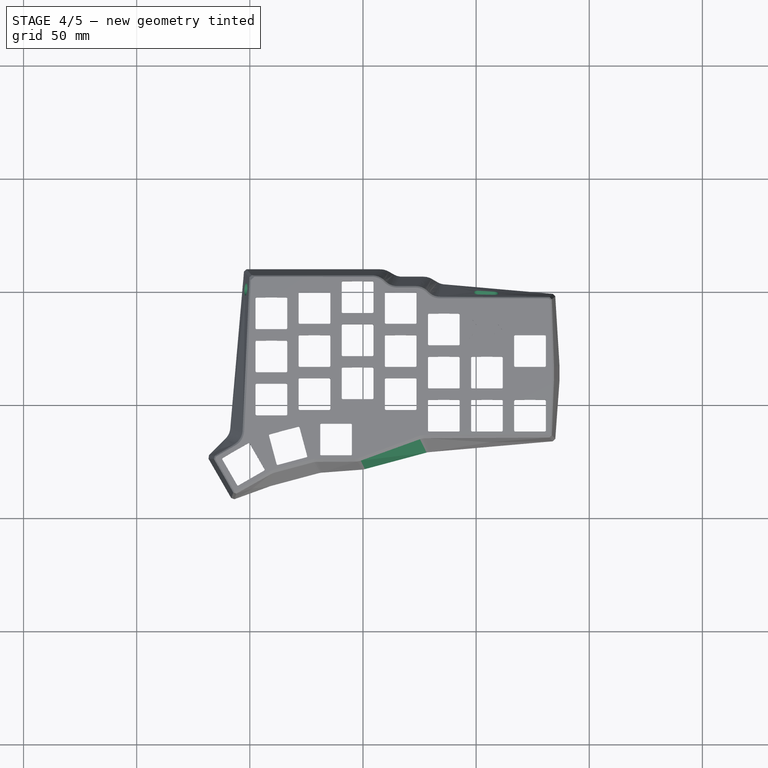
[diagram: stage 4 of 5 — top view after this stage's code; geometry added in this stage tinted green]
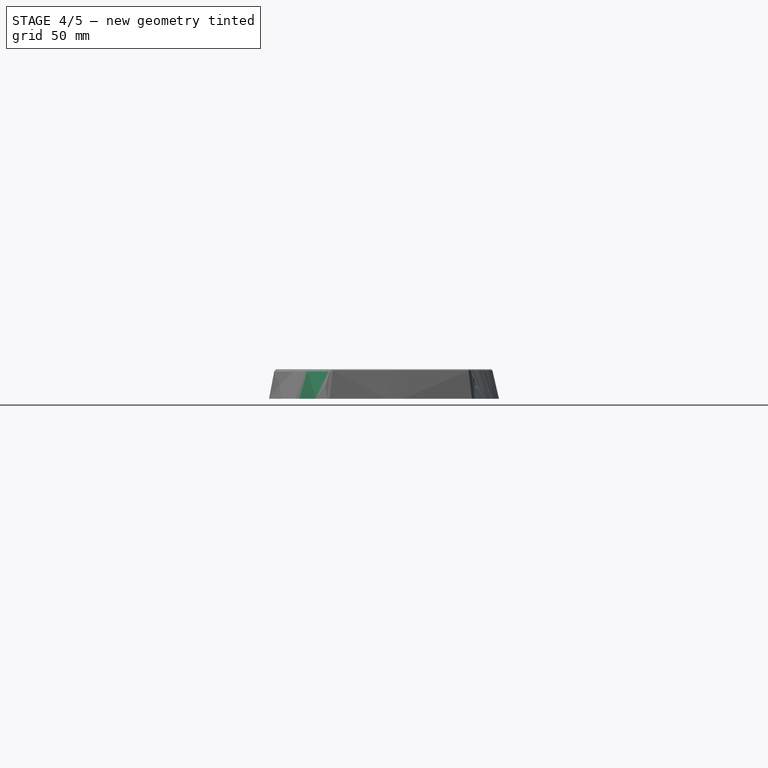
[diagram: stage 4 of 5 — right view after this stage's code; geometry added in this stage tinted green]
FEATURE [Sketcher::SketchObject] Sketch003
  AttachmentOffset = pos=(0,0,-3) rot=(0,0,1;0rad)
  FullyConstrained = true
  MapMode = 5
  Placement = pos=(0,0,-3) rot=(0,0,1;0rad)
  Support = -> [XY_Plane]
  expr: .AttachmentOffset.Base.z = -3
  sketch-geometry (12):
    g0: LineSegment StartX=115.875 StartY=-23.625 StartZ=0 EndX=113.875 EndY=-23.625 EndZ=0
    g1: LineSegment StartX=113.875 StartY=-23.625 StartZ=0 EndX=113.875 EndY=-27.625 EndZ=0
    g2: LineSegment StartX=113.875 StartY=-27.625 StartZ=0 EndX=112.375 EndY=-27.625 EndZ=0
    g3: LineSegment StartX=112.375 StartY=-27.625 StartZ=0 EndX=112.375 EndY=-29.625 EndZ=0
    g4: LineSegment StartX=112.375 StartY=-29.625 StartZ=0 EndX=115.875 EndY=-29.625 EndZ=0
    g5: LineSegment StartX=115.875 StartY=-29.625 StartZ=0 EndX=115.875 EndY=-23.625 EndZ=0
    g6: LineSegment StartX=95.275 StartY=-23.625 StartZ=0 EndX=93.275 EndY=-23.625 EndZ=0
    g7: LineSegment StartX=93.275 StartY=-23.625 StartZ=0 EndX=93.275 EndY=-29.625 EndZ=0
    g8: LineSegment StartX=93.275 StartY=-29.625 StartZ=0 EndX=96.775 EndY=-29.625 EndZ=0
    g9: LineSegment StartX=96.775 StartY=-29.625 StartZ=0 EndX=96.775 EndY=-27.625 EndZ=0
    g10: LineSegment StartX=96.775 StartY=-27.625 StartZ=0 EndX=95.275 EndY=-27.625 EndZ=0
    g11: LineSegment StartX=95.275 StartY=-27.625 StartZ=0 EndX=95.275 EndY=-23.625 EndZ=0
  constraints (36):
    c: Horizontal(g0)
    c: Coincident(g0,g1)
    c: Coincident(g1,g2)
    c: Coincident(g2,g3)
    c: Coincident(g3,g4)
    c: Horizontal(g4)
    c: Coincident(g4,g5)
    c: Vertical(g5)
    c: Coincident(g0,g5)
    c: Vertical(g1)
    c: Horizontal(g2)
    c: Vertical(g3)
    c: DistanceY(g3,g3) = 2
    c: DistanceX(g1) = 113.875
    c: DistanceY(g1) = -27.625
    c: DistanceX(g0,g0) = 2
    c: DistanceY(g5,g5) = 6
    c: DistanceX(g4,g4) = 3.5
    c: Horizontal(g6)
    c: Coincident(g6,g7)
    c: Vertical(g7)
    c: Coincident(g7,g8)
    c: Coincident(g8,g9)
    c: Vertical(g9)
    c: Coincident(g9,g10)
    c: Coincident(g10,g11)
    c: Coincident(g11,g6)
    c: Vertical(g11)
    c: Horizontal(g10)
    c: Horizontal(g8)
    c: Equal(g3,g9)
    c: Equal(g6,g0)
    c: Horizontal(g0,g6)
    c: Horizontal(g3,g8)
    c: Equal(g8,g4)
    c: DistanceX(g8,g3) = 15.6
FEATURE [Sketcher::SketchObject] Sketch005
  FullyConstrained = true
  MapMode = 5
  Placement = pos=(0,0,0) rot=(1,0,0;1.5708rad)
  Support = -> [XZ_Plane002]
  expr: Constraints[16] = 4.6 mm + 0.1 mm + 0.1 mm
  expr: Constraints[17] = 10.5 mm + 0.1 mm + 0.1 mm
  expr: Constraints[20] = <<S>>.usbcCutoutOffset
  sketch-geometry (9):
    g0: LineSegment StartX=107.85 StartY=-3.8 StartZ=0 EndX=101.15 EndY=-3.8 EndZ=0
    g1: LineSegment StartX=99.15 StartY=-5.8 StartZ=0 EndX=99.15 EndY=-6.6 EndZ=0
    g2: LineSegment StartX=101.15 StartY=-8.6 StartZ=0 EndX=107.85 EndY=-8.6 EndZ=0
    g3: LineSegment StartX=109.85 StartY=-6.6 StartZ=0 EndX=109.85 EndY=-5.8 EndZ=0
    g4: ArcOfCircle CenterX=107.85 CenterY=-5.8 CenterZ=0 NormalX=0 NormalY=0 NormalZ=1 AngleXU=0 Radius=2 StartAngle=0 EndAngle=1.5708
    g5: ArcOfCircle CenterX=101.15 CenterY=-5.8 CenterZ=0 NormalX=0 NormalY=0 NormalZ=1 AngleXU=0 Radius=2 StartAngle=1.5708 EndAngle=3.14159
    g6: ArcOfCircle CenterX=107.85 CenterY=-6.6 CenterZ=0 NormalX=0 NormalY=0 NormalZ=1 AngleXU=0 Radius=2 StartAngle=4.71239 EndAngle=6.28319
    g7: ArcOfCircle CenterX=101.15 CenterY=-6.6 CenterZ=0 NormalX=0 NormalY=0 NormalZ=1 AngleXU=0 Radius=2 StartAngle=3.14159 EndAngle=4.71239
    g8: GeomPoint X=104.5 Y=-6.2 Z=0
  constraints (21):
    c: Horizontal(g0)
    c: Horizontal(g2)
    c: Vertical(g1)
    c: Vertical(g3)
    c: Tangent(g3,g4) = -1.5708
    c: Tangent(g0,g4) = -1.5708
    c: Tangent(g0,g5) = -1.5708
    c: Tangent(g1,g5) = -1.5708
    c: Tangent(g3,g6) = -1.5708
    c: Tangent(g2,g6) = -1.5708
    c: Tangent(g2,g7) = -1.5708
    c: Tangent(g1,g7) = -1.5708
    c: Radius(g4) = 2
    c: Equal(g4,g5)
    c: Equal(g5,g7)
    c: Equal(g7,g6)
    c: DistanceY(g2,g0) = 4.8
    c: DistanceX(g1,g3) = 10.7
    c: Symmetric(g0,g2,g8)
    c: DistanceX(g-1,g8) = 104.5
    c: DistanceY(g8,g-1) = 6.2
FEATURE [PartDesign::Pad] Pad002
  Direction = (0,-1,-2e-16)
  Length = 8
  Length2 = 10
  Midplane = true
  Placement = pos=(0,0,0) rot=(1,0,0;1.5708rad)
  Profile = -> Sketch005
  ReferenceAxis = -> Sketch005 [N_Axis]
  Type = 0
FEATURE [PartDesign::Body] Body002  label="USBC-Cutout"
  Group = -> [Sketch005,Pad002]
  Origin = -> Origin002
  Tip = -> Pad002
FEATURE [Sketcher::SketchObject] Sketch006
  FullyConstrained = true
  MapMode = 5
  Placement = pos=(0,0,0) rot=(0.57735,0.57735,0.57735;2.0944rad)
  Support = -> [YZ_Plane003]
  expr: Constraints[2] = 2.5 mm + 0.1 mm + 0.1 mm
  sketch-geometry (1):
    g0: Circle CenterX=1.125 CenterY=-6.5 CenterZ=0 NormalX=0 NormalY=0 NormalZ=1 AngleXU=0 Radius=2.7
  constraints (3):
    c: DistanceX(g0) = 1.125
    c: DistanceY(g0) = -6.5
    c: Radius(g0) = 2.7
FEATURE [PartDesign::Pad] Pad003
  Direction = (1,-2e-16,3e-16)
  Length = 20
  Length2 = 10
  Midplane = true
  Placement = pos=(0,0,0) rot=(0.57735,0.57735,0.57735;2.0944rad)
  Profile = -> Sketch006
  ReferenceAxis = -> Sketch006 [N_Axis]
  Type = 0
FEATURE [Part::Chamfer] Chamfer003
  Base = -> Fusion
  Edges = 33 edges: [Edge283 r=1,Edge286 r=0.5,Edge288 r=0.5,Edge290 r=0.5,Edge292 r=0.5,Edge294 r=0.5,Edge296 r=0.5,Edge298 r=0.5,Edge300 r=0.5,Edge302 r=0.5,Edge304 r=0.5,Edge306 r=0.5,Edge308 r=0.5,Edge310 r=0.5,Edge312 r=0.5,Edge314 r=0.5,Edge316 r=0.5,Edge318 r=0.5,Edge320 r=0.5,Edge322 r=0.5,Edge324 r=0.5,Edge326 r=0.5,Edge328 r=0.5,Edge330 r=0.5,Edge332 r=0.5,Edge334 r=0.5,Edge336 r=0.5,Edge338 r=1,Edge340 r=1,Edge342 r=1,Edge344 r=1,Edge346 r=1,Edge348 r=1]
FEATURE [Part::Compound] Compound005  label="CompoundToCut"
  Links = -> [Body002,Body003,PointArray,Link003,Body004,Compound010]
FEATURE [Part::Cut] Cut
  Base = -> Chamfer003
  Refine = true
  Tool = -> Compound005
FEATURE [PartDesign::LinearPattern] LinearPattern
  BaseFeature = -> Pad001
  Direction = -> Sketch001 [H_Axis]
  Length = 12
  Occurrences = 2
  Originals = -> [Pad001]
FEATURE [Sketcher::SketchObject] Sketch002
  FullyConstrained = true
  MapMode = 5
  Placement = pos=(0,0,0) rot=(1,0,0;3.14159rad)
  sketch-geometry (10):
    g0: ArcOfCircle CenterX=-5.15 CenterY=5.5 CenterZ=0 NormalX=0 NormalY=0 NormalZ=1 AngleXU=0 Radius=0.5 StartAngle=1.5708 EndAngle=3.14159
    g1: LineSegment StartX=-5.15 StartY=6 StartZ=0 EndX=1.85 EndY=6 EndZ=0
    g2: ArcOfCircle CenterX=1.85 CenterY=5.5 CenterZ=0 NormalX=0 NormalY=0 NormalZ=1 AngleXU=0 Radius=0.5 StartAngle=8e-16 EndAngle=1.5708
    g3: LineSegment StartX=2.35 StartY=5.5 StartZ=0 EndX=2.35 EndY=4.5 EndZ=0
    g4: ArcOfCircle CenterX=1.85 CenterY=4.5 CenterZ=0 NormalX=0 NormalY=0 NormalZ=1 AngleXU=0 Radius=0.5 StartAngle=4.71239 EndAngle=6.28319
    g5: LineSegment StartX=1.85 StartY=4 StartZ=0 EndX=-5.15 EndY=4 EndZ=0
    g6: ArcOfCircle CenterX=-5.15 CenterY=4.5 CenterZ=0 NormalX=0 NormalY=0 NormalZ=1 AngleXU=0 Radius=0.5 StartAngle=3.14159 EndAngle=4.71239
    g7: LineSegment StartX=-5.65 StartY=4.5 StartZ=0 EndX=-5.65 EndY=5.5 EndZ=0
    g8: GeomPoint X=-5.65 Y=6 Z=0
    g9: GeomPoint X=2.35 Y=4 Z=0
  constraints (24):
    c: Tangent(g0,g1) = 1.5708
    c: Tangent(g1,g2) = 1.5708
    c: Tangent(g2,g3) = 1.5708
    c: Tangent(g3,g4) = 1.5708
    c: Tangent(g4,g5) = 1.5708
    c: Tangent(g5,g6) = 1.5708
    c: Tangent(g6,g7) = 1.5708
    c: Tangent(g7,g0) = 1.5708
    c: Horizontal(g1)
    c: Horizontal(g5)
    c: Vertical(g3)
    c: Vertical(g7)
    c: Equal(g0,g2)
    c: Equal(g2,g4)
    c: Equal(g4,g6)
    c: PointOnObject(g8,g1)
    c: PointOnObject(g8,g7)
    c: PointOnObject(g9,g3)
    c: PointOnObject(g9,g5)
    c: Radius(g2) = 0.5
    c: DistanceY(g4,g1) = 2
    c: DistanceX(g1,g1) = 7
    c: DistanceX(g-1,g1) = 1.85
    c: DistanceY(g-1,g4) = 4
FEATURE [PartDesign::Pad] Pad002
  BaseFeature = -> LinearPattern
  Direction = (0,0,-1)
  Length = 0.4
  Length2 = 10
  Profile = -> Sketch002
  ReferenceAxis = -> Sketch002 [N_Axis]
  Type = 0
FEATURE [PartDesign::Body] Body  label="ShiftyStamp"
  Group = -> [Sketch,Pad,Sketch001,Pad001,LinearPattern,Sketch002,Pad002]
  Origin = -> Origin
  Tip = -> Pad002
FEATURE [Part::Refine] Body001  label="ShiftyStampR"
  Source = -> Body
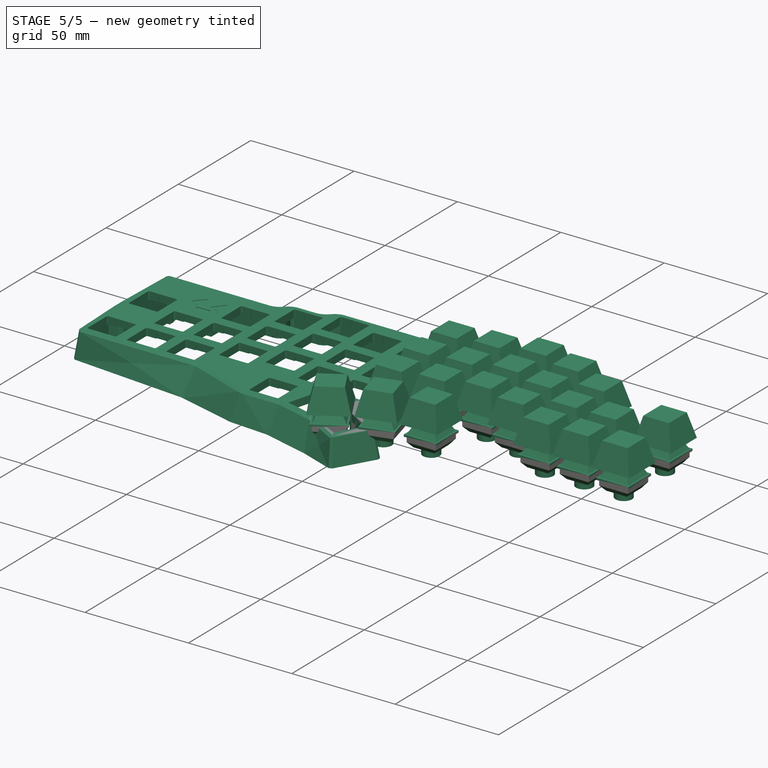
[diagram: stage 5 of 5 — iso view after this stage's code; geometry added in this stage tinted green]
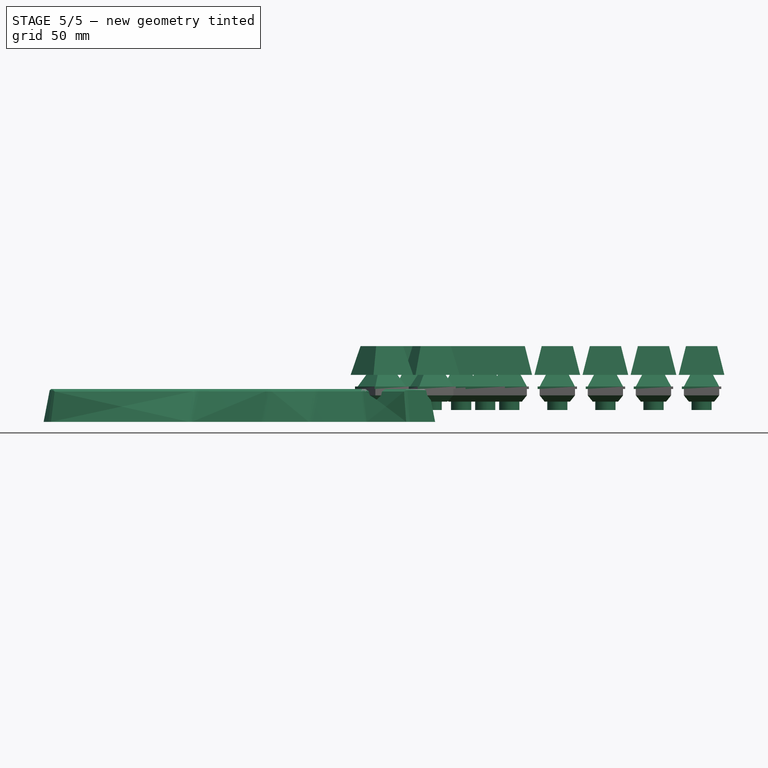
[diagram: stage 5 of 5 — front view after this stage's code; geometry added in this stage tinted green]
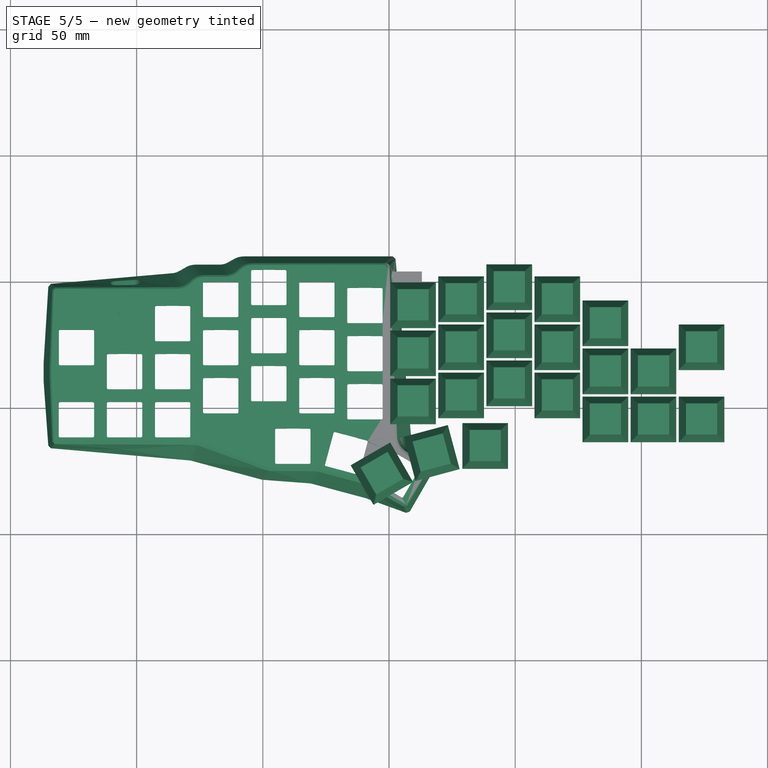
[diagram: stage 5 of 5 — top view after this stage's code; geometry added in this stage tinted green]
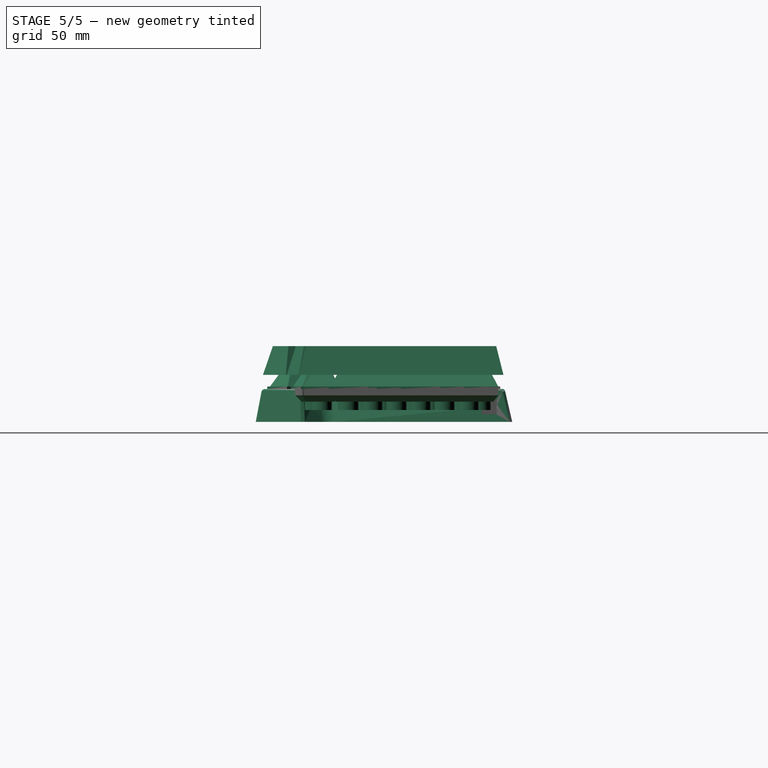
[diagram: stage 5 of 5 — right view after this stage's code; geometry added in this stage tinted green]
FEATURE [Spreadsheet::Sheet] Spreadsheet  label="S"
  cells = A1='TopThk; B1(topThk)==3.6 mm; A2='CaseHeight; B2(caseHeight)==13 mm; A3='USB-C Cutout Offset; B3(usbcCutoutOffset)==6.2 mm; A4='TRS Offset; B4(trsOffset)==13 mm
FEATURE [Part::FeaturePython] Point  # WARN: FeaturePython — macro-defined, semantics opaque (R4)
  Placement = pos=(9.53,-9.53,4.06e-13) rot=(0,0,1;0rad)
  X = 9.53
  Y = -9.53
  Z = 4.063e-13
FEATURE [Part::FeaturePython] Point001  # WARN: FeaturePython — macro-defined, semantics opaque (R4)
  Placement = pos=(9.53,-28.58,4.06e-13) rot=(0,0,1;0rad)
  X = 9.53
  Y = -28.58
  Z = 4.063e-13
FEATURE [Part::FeaturePython] Point002  # WARN: FeaturePython — macro-defined, semantics opaque (R4)
  Placement = pos=(9.53001,-47.63,1.218e-12) rot=(0,0,1;0rad)
  X = 9.53001
  Y = -47.63
  Z = 1.2184e-12
FEATURE [Part::FeaturePython] Point003  # WARN: FeaturePython — macro-defined, semantics opaque (R4)
  Placement = pos=(28.58,-7.14875,4.06e-13) rot=(0,0,1;0rad)
  X = 28.58
  Y = -7.14875
  Z = 4.063e-13
FEATURE [Part::FeaturePython] Point004  # WARN: FeaturePython — macro-defined, semantics opaque (R4)
  Placement = pos=(28.58,-26.1987,4.06e-13) rot=(0,0,1;0rad)
  X = 28.58
  Y = -26.1987
  Z = 4.063e-13
FEATURE [Part::FeaturePython] Point005  # WARN: FeaturePython — macro-defined, semantics opaque (R4)
  Placement = pos=(28.58,-45.2487,1.218e-12) rot=(0,0,1;0rad)
  X = 28.58
  Y = -45.2487
  Z = 1.2184e-12
FEATURE [Part::FeaturePython] Point006  # WARN: FeaturePython — macro-defined, semantics opaque (R4)
  Placement = pos=(47.63,-2.38625,4.06e-13) rot=(0,0,1;0rad)
  X = 47.63
  Y = -2.38625
  Z = 4.063e-13
FEATURE [Part::FeaturePython] Point007  # WARN: FeaturePython — macro-defined, semantics opaque (R4)
  Placement = pos=(47.63,-21.4362,4.06e-13) rot=(0,0,1;0rad)
  X = 47.63
  Y = -21.4362
  Z = 4.063e-13
FEATURE [Part::FeaturePython] Point008  # WARN: FeaturePython — macro-defined, semantics opaque (R4)
  Placement = pos=(47.63,-40.4862,1.218e-12) rot=(0,0,1;0rad)
  X = 47.63
  Y = -40.4862
  Z = 1.2184e-12
FEATURE [Part::FeaturePython] Point009  # WARN: FeaturePython — macro-defined, semantics opaque (R4)
  Placement = pos=(66.68,-7.14875,4.06e-13) rot=(0,0,1;0rad)
  X = 66.68
  Y = -7.14875
  Z = 4.063e-13
FEATURE [Part::FeaturePython] Point010  # WARN: FeaturePython — macro-defined, semantics opaque (R4)
  Placement = pos=(66.68,-26.1987,6.09e-13) rot=(0,0,1;0rad)
  X = 66.68
  Y = -26.1987
  Z = 6.093e-13
FEATURE [Part::FeaturePython] Point011  # WARN: FeaturePython — macro-defined, semantics opaque (R4)
  Placement = pos=(66.68,-45.2487,1.421e-12) rot=(0,0,1;0rad)
  X = 66.68
  Y = -45.2487
  Z = 1.4215e-12
FEATURE [Part::FeaturePython] Point012  # WARN: FeaturePython — macro-defined, semantics opaque (R4)
  Placement = pos=(85.73,-16.6737,7.06e-13) rot=(0,0,1;0rad)
  X = 85.73
  Y = -16.6737
  Z = 7.057e-13
FEATURE [Part::FeaturePython] Point013  # WARN: FeaturePython — macro-defined, semantics opaque (R4)
  Placement = pos=(85.73,-35.7237,1.703e-12) rot=(0,0,1;0rad)
  X = 85.73
  Y = -35.7237
  Z = 1.7025e-12
FEATURE [Part::FeaturePython] Point014  # WARN: FeaturePython — macro-defined, semantics opaque (R4)
  Placement = pos=(104.78,-35.7237,1.703e-12) rot=(0,0,1;0rad)
  X = 104.78
  Y = -35.7237
  Z = 1.7025e-12
FEATURE [Part::FeaturePython] Point015  # WARN: FeaturePython — macro-defined, semantics opaque (R4)
  Placement = pos=(85.73,-54.7737,1.726e-12) rot=(0,0,1;0rad)
  X = 85.73
  Y = -54.7737
  Z = 1.726e-12
FEATURE [Part::FeaturePython] Point016  # WARN: FeaturePython — macro-defined, semantics opaque (R4)
  Placement = pos=(104.78,-54.7737,2.515e-12) rot=(0,0,1;0rad)
  X = 104.78
  Y = -54.7737
  Z = 2.5147e-12
FEATURE [Part::FeaturePython] Point017  # WARN: FeaturePython — macro-defined, semantics opaque (R4)
  Placement = pos=(123.83,-54.7737,2.515e-12) rot=(0,0,1;0rad)
  X = 123.83
  Y = -54.7737
  Z = 2.5147e-12
FEATURE [Part::FeaturePython] Point018  # WARN: FeaturePython — macro-defined, semantics opaque (R4)
  Placement = pos=(38.105,-65.2987,2.0732e-12) rot=(0,0,1;0rad)
  X = 38.105
  Y = -65.2987
  Z = 2.0732e-12
FEATURE [Part::FeaturePython] Point020  # WARN: FeaturePython — macro-defined, semantics opaque (R4)
  Placement = pos=(16.9093,-68.0836,-3.82784e-07) rot=(0,0,1;0rad)
  X = 16.9093
  Y = -68.0836
  Z = -3.82784e-07
FEATURE [Part::FeaturePython] Point021  # WARN: FeaturePython — macro-defined, semantics opaque (R4)
  Placement = pos=(-2.83728,-76.2629,-5.07343e-07) rot=(0,0,1;0rad)
  X = -2.83728
  Y = -76.2629
  Z = -5.07343e-07
FEATURE [Part::FeaturePython] Point022  # WARN: FeaturePython — macro-defined, semantics opaque (R4)
  Placement = pos=(123.825,-26.1939,-3.96299e-11) rot=(0,0,1;0rad)
  X = 123.825
  Y = -26.1939
  Z = -3.96299e-11
FEATURE [Part::Compound] Compound001  label="PointCompound"
  Links = -> [Point021,Point,Point001,Point002,Point003,Point004,Point005,Point006,Point007,Point008,Point009,Point010,Point011,Point012,Point013,Point014,Point015,Point016,Point017,Point018,Point020,Point022]
FEATURE [Part::Feature] Wire
  Placement = pos=(114.3,-45.2435,-4.00313e-10) rot=(1e-06,-2e-06,-1;1e-05rad)
  shape: bbox 19.05 x 38.1 x 2.007e-07 mm, 0 faces, 0 solids (baked)
FEATURE [Part::Feature] Wire034
  Placement = pos=(0,-19.05,0) rot=(0,0,1;0rad)
  shape: bbox 19.05 x 19.05 x 2e-07 mm, 0 faces, 0 solids (baked)
FEATURE [Part::Feature] Wire035
  Placement = pos=(38.1,-50.0062,1.624e-12) rot=(0,0,1.00791;0rad)
  shape: bbox 19.05 x 19.05 x 2e-07 mm, 0 faces, 0 solids (baked)
FEATURE [Part::Feature] Wire036
  Placement = pos=(38.1,-30.9562,8.12e-13) rot=(0,0,1.00791;0rad)
  shape: bbox 19.05 x 19.05 x 2e-07 mm, 0 faces, 0 solids (baked)
FEATURE [Part::Feature] Wire037
  Placement = pos=(95.25,-64.2937,2.921e-12) rot=(0,0,1.00791;0rad)
  shape: bbox 19.05 x 19.05 x 2e-07 mm, 0 faces, 0 solids (baked)
FEATURE [Part::Feature] Wire038
  Placement = pos=(76.2,-64.2937,2.921e-12) rot=(0,0,1.00791;0rad)
  shape: bbox 19.05 x 19.05 x 2e-07 mm, 0 faces, 0 solids (baked)
FEATURE [Part::Feature] Wire039
  Placement = pos=(95.25,-45.2437,2.108e-12) rot=(0,0,1.00791;0rad)
  shape: bbox 19.05 x 19.05 x 2e-07 mm, 0 faces, 0 solids (baked)
FEATURE [Part::Feature] Wire040
  Placement = pos=(-6.32367,-89.2742,5.72445e-07) rot=(0,0,1;0.523599rad)
  shape: bbox 26.02 x 26.02 x 2.36e-06 mm, 0 faces, 0 solids (baked)
FEATURE [Part::Feature] Wire041
  Placement = pos=(28.575,-74.8187,2.479e-12) rot=(0,0,1.00791;0rad)
  shape: bbox 19.05 x 19.05 x 2e-07 mm, 0 faces, 0 solids (baked)
FEATURE [Part::Feature] Wire042
  Placement = pos=(10.1741,-79.7492,1.16073e-07) rot=(0,0,1;0.261799rad)
  shape: bbox 23.33 x 23.33 x 1.198e-06 mm, 0 faces, 0 solids (baked)
FEATURE [Part::Feature] Wire043
  Placement = pos=(76.2,-45.2437,2.108e-12) rot=(0,0,1.00791;0rad)
  shape: bbox 19.05 x 19.05 x 2e-07 mm, 0 faces, 0 solids (baked)
FEATURE [Part::Feature] Wire044
  Placement = pos=(114.3,-64.2937,2.921e-12) rot=(0,0,1.00791;0rad)
  shape: bbox 19.05 x 19.05 x 2e-07 mm, 0 faces, 0 solids (baked)
FEATURE [Part::Feature] Wire045
  Placement = pos=(76.2,-26.1938,1.296e-12) rot=(0,0,1.00791;0rad)
  shape: bbox 19.05 x 19.05 x 2e-07 mm, 0 faces, 0 solids (baked)
FEATURE [Part::Feature] Wire046
  Placement = pos=(57.15,-16.6687,7.05e-13) rot=(0,0,1.00791;0rad)
  shape: bbox 19.05 x 19.05 x 2e-07 mm, 0 faces, 0 solids (baked)
FEATURE [Part::Feature] Wire048
  Placement = pos=(19.05,-54.7687,1.624e-12) rot=(0,0,1.00791;0rad)
  shape: bbox 19.05 x 19.05 x 2e-07 mm, 0 faces, 0 solids (baked)
FEATURE [Part::Feature] Wire049
  Placement = pos=(57.15,-35.7187,9.14e-13) rot=(0,0,1.00791;0rad)
  shape: bbox 19.05 x 19.05 x 2e-07 mm, 0 faces, 0 solids (baked)
FEATURE [Part::Feature] Wire050
  Placement = pos=(57.15,-54.7687,1.726e-12) rot=(0,0,1.00791;0rad)
  shape: bbox 19.05 x 19.05 x 2e-07 mm, 0 faces, 0 solids (baked)
FEATURE [Part::Feature] Wire051
  Placement = pos=(4.54187e-06,-38.1,8.12e-13) rot=(0,0,1.00791;0rad)
  shape: bbox 19.05 x 19.05 x 2e-07 mm, 0 faces, 0 solids (baked)
FEATURE [Part::Feature] Wire052
  Placement = pos=(9.08375e-06,-57.15,1.624e-12) rot=(0,0,1.00791;0rad)
  shape: bbox 19.05 x 19.05 x 2e-07 mm, 0 faces, 0 solids (baked)
FEATURE [Part::Feature] Wire053
  Placement = pos=(19.05,-16.6687,0) rot=(0,0,1;0rad)
  shape: bbox 19.05 x 19.05 x 2e-07 mm, 0 faces, 0 solids (baked)
FEATURE [Part::Feature] Wire054
  Placement = pos=(38.1,-11.9062,0) rot=(0,0,1;0rad)
  shape: bbox 19.05 x 19.05 x 2e-07 mm, 0 faces, 0 solids (baked)
FEATURE [Part::Feature] Wire055
  Placement = pos=(19.05,-35.7187,8.12e-13) rot=(0,0,1.00791;0rad)
  shape: bbox 19.05 x 19.05 x 2e-07 mm, 0 faces, 0 solids (baked)
FEATURE [Part::Compound] Compound  label="WireCompound1905"
  Links = -> [Wire034,Wire035,Wire036,Wire037,Wire038,Wire039,Wire040,Wire041,Wire042,Wire043,Wire044,Wire045,Wire046,Wire048,Wire049,Wire050,Wire051,Wire052,Wire053,Wire054,Wire055,Wire]
FEATURE [PartDesign::ShapeBinder] ShapeBinder
  Support = -> [Compound]
  TraceSupport = false
FEATURE [Sketcher::SketchObject] Sketch  label="SketchTop"
  ExternalGeometry = -> [ShapeBinder]
  FullyConstrained = true
  MapMode = 5
  Support = -> [XY_Plane]
  sketch-geometry (19):
    g0: LineSegment StartX=57.15 StartY=7.14375 StartZ=0 EndX=61.9125 EndY=2.38125 EndZ=0
    g1: LineSegment StartX=61.9125 StartY=2.38125 StartZ=0 EndX=76.2 EndY=2.38125 EndZ=0
    g2: LineSegment StartX=76.2 StartY=2.38125 StartZ=0 EndX=80.9625 EndY=-2.38124 EndZ=0
    g3: LineSegment StartX=80.9625 StartY=-2.38124 StartZ=0 EndX=133.35 EndY=-2.38124 EndZ=0
    g4: LineSegment StartX=133.35 StartY=-2.38124 StartZ=0 EndX=134.35 EndY=-33.2188 EndZ=0
    g5: LineSegment StartX=134.35 StartY=-38.2188 StartZ=0 EndX=133.35 EndY=-64.2937 EndZ=0
    g6: LineSegment StartX=133.35 StartY=-64.2937 StartZ=0 EndX=76.2 EndY=-64.2937 EndZ=0
    g7: LineSegment StartX=76.2 StartY=-64.2937 StartZ=0 EndX=47.625 EndY=-74.8187 EndZ=0
    g8: LineSegment StartX=47.625 StartY=-74.8187 StartZ=0 EndX=28.575 EndY=-74.8187 EndZ=0
    g9: LineSegment StartX=28.575 StartY=-74.8187 StartZ=0 EndX=10.1741 EndY=-79.7492 EndZ=0
    g10: LineSegment StartX=10.1741 StartY=-79.7492 StartZ=0 EndX=-6.75668 EndY=-89.5242 EndZ=0
    g11: LineSegment StartX=-16.2817 StartY=-73.0265 StartZ=0 EndX=-3.16979 EndY=-65.4563 EndZ=0
    g12: LineSegment StartX=-3.16979 StartY=-65.4563 StartZ=0 EndX=-4e-16 EndY=7.14375 EndZ=0
    g13: LineSegment StartX=-4e-16 StartY=7.14375 StartZ=0 EndX=57.15 EndY=7.14375 EndZ=0
    g14: LineSegment StartX=134.35 StartY=-33.2188 StartZ=0 EndX=134.35 EndY=-35.7188 EndZ=0
    g15: LineSegment StartX=134.35 StartY=-35.7188 StartZ=0 EndX=134.35 EndY=-38.2188 EndZ=0
    g16: GeomPoint X=133.35 Y=-7.14393 Z=0
    g17: GeomPoint X=133.35 Y=-35.7188 Z=0
    g18: LineSegment StartX=-16.2817 StartY=-73.0265 StartZ=0 EndX=-6.75668 EndY=-89.5242 EndZ=0
  constraints (47):
    c: Coincident(g0,g1)
    c: Horizontal(g1)
    c: Coincident(g1,g2)
    c: Coincident(g2,g3)
    c: Horizontal(g3)
    c: Coincident(g3,g4)
    c: Coincident(g5,g6)
    c: Horizontal(g6)
    c: Coincident(g6,g7)
    c: Coincident(g7,g8)
    c: Coincident(g8,g9)
    c: Coincident(g9,g10)
    c: Coincident(g11,g12)
    c: Coincident(g12,g13)
    c: Horizontal(g13)
    c: Coincident(g13,g0)
    c: Coincident(g-4,g0)
    c: Coincident(g1,g-5)
    c: Angle(g13,g0) = 2.35619
    c: Equal(g0,g2)
    c: Angle(g1,g2) = 2.35619
    c: Vertical(g-1,g12)
    c: Angle(g12,g13) = 1.61443
    c: Parallel(g-12,g11)
    c: Coincident(g9,g-13)
    c: Coincident(g-14,g8)
    c: Coincident(g7,g-14)
    c: Coincident(g5,g-8)
    c: Coincident(g4,g14)
    c: Vertical(g14)
    c: Coincident(g14,g15)
    c: Coincident(g15,g5)
    c: Vertical(g15)
    c: Equal(g15,g14)
    c: Coincident(g16,g-7)
    c: Symmetric(g16,g5,g17)
    c: Horizontal(g17,g14)
    c: DistanceX(g17,g14) = 1
    c: DistanceY(g14,g14) = 2.5
    c: Vertical(g3,g5)
    c: Vertical(g-9,g6)
    c: Parallel(g-10,g10)
    c: Coincident(g18,g11)
    c: Coincident(g18,g10)
    c: Parallel(g18,g-11)
    c: Distance(g-12,g18) = 0.5
    c: PointOnObject(g11,g-12)
FEATURE [Sketcher::SketchObject] Sketch001  label="SketchBot"
  AttachmentOffset = pos=(0,0,-13) rot=(0,0,1;0rad)
  ExternalGeometry = -> [ShapeBinder]
  FullyConstrained = true
  MapMode = 5
  Placement = pos=(0,0,-13) rot=(0,0,1;0rad)
  Support = -> [XY_Plane]
  expr: .AttachmentOffset.Base.z = 0 mm - <<S>>.caseHeight
  sketch-geometry (18):
    g0: LineSegment StartX=59.65 StartY=10.1437 StartZ=0 EndX=65.3008 EndY=6.88125 EndZ=0
    g1: LineSegment StartX=65.3008 StartY=6.88125 StartZ=0 EndX=78.7 EndY=6.88125 EndZ=0
    g2: LineSegment StartX=78.7 StartY=6.88125 StartZ=0 EndX=84.3508 EndY=3.61876 EndZ=0
    g3: LineSegment StartX=84.3508 StartY=3.61876 StartZ=0 EndX=134.929 EndY=-0.806253 EndZ=0
    g4: LineSegment StartX=134.929 StartY=-0.806253 StartZ=0 EndX=136.85 EndY=-32.2188 EndZ=0
    g5: LineSegment StartX=136.85 StartY=-32.2188 StartZ=0 EndX=136.85 EndY=-35.7188 EndZ=0
    g6: LineSegment StartX=136.85 StartY=-35.7188 StartZ=0 EndX=136.85 EndY=-39.2188 EndZ=0
    g7: LineSegment StartX=136.85 StartY=-39.2188 StartZ=0 EndX=134.929 EndY=-65.7937 EndZ=0
    g8: LineSegment StartX=78.7 StartY=-70.7131 StartZ=0 EndX=50.125 EndY=-78.3698 EndZ=0
    g9: LineSegment StartX=50.125 StartY=-78.3698 StartZ=0 EndX=31.075 EndY=-79.7992 EndZ=0
    g10: LineSegment StartX=31.075 StartY=-79.7992 StartZ=0 EndX=9.17411 EndY=-85.6675 EndZ=0
    g11: LineSegment StartX=9.17411 StartY=-85.6675 StartZ=0 EndX=-7.73873 EndY=-91.8233 EndZ=0
    g12: LineSegment StartX=-7.73873 StartY=-91.8233 StartZ=0 EndX=-18.7637 EndY=-72.7274 EndZ=0
    g13: LineSegment StartX=-18.7637 StartY=-72.7274 StartZ=0 EndX=-8.88611 EndY=-62.8498 EndZ=0
    g14: LineSegment StartX=-8.88611 StartY=-62.8498 StartZ=0 EndX=-2.5 EndY=10.1437 EndZ=0
    g15: LineSegment StartX=-2.5 StartY=10.1437 StartZ=0 EndX=59.65 EndY=10.1437 EndZ=0
    g16: GeomPoint X=133.35 Y=-35.7188 Z=0
    g17: LineSegment StartX=78.7 StartY=-70.7131 StartZ=0 EndX=134.929 EndY=-65.7937 EndZ=0
  constraints (52):
    c: Coincident(g0,g1)
    c: Horizontal(g1)
    c: Coincident(g1,g2)
    c: Coincident(g2,g3)
    c: Coincident(g3,g4)
    c: Coincident(g4,g5)
    c: Coincident(g5,g6)
    c: Coincident(g6,g7)
    c: Coincident(g8,g9)
    c: Coincident(g9,g10)
    c: Coincident(g10,g11)
    c: Coincident(g11,g12)
    c: Coincident(g12,g13)
    c: Coincident(g13,g14)
    c: Coincident(g14,g15)
    c: Horizontal(g15)
    c: DistanceY(g-4,g15) = 3
    c: DistanceX(g-4,g15) = 2.5
    c: Coincident(g0,g15)
    c: DistanceY(g-5,g1) = 4.5
    c: DistanceX(g-5,g1) = 2.5
    c: Angle(g15,g0) = 2.61799
    c: Equal(g0,g2)
    c: Angle(g1,g2) = 2.61799
    c: Vertical(g5)
    c: Vertical(g6)
    c: Symmetric(g-7,g-8,g16)
    c: Horizontal(g16,g5)
    c: DistanceX(g16,g5) = 3.5
    c: DistanceY(g5,g5) = 3.5
    c: Equal(g5,g6)
    c: Vertical(g7,g3)
    c: Parallel(g12,g-11)
    c: Angle(g12,g13) = 1.8326
    c: Angle(g11,g12) = 1.74533
    c: Distance(g-11,g12) = 2.5
    c: Distance(g12,g-10) = 1.5
    c: Distance(g11,g-12) = 1.5
    c: Angle(g14,g15) = 1.65806
    c: DistanceX(g14,g-1) = 2.5
    c: DistanceY(g7,g-8) = 1.5
    c: DistanceX(g-9,g8) = 2.5
    c: Parallel(g-13,g10)
    c: DistanceX(g-14,g8) = 2.5
    c: DistanceX(g-14,g9) = 2.5
    c: DistanceX(g10,g-13) = 1
    c: Angle(g-2,g4) = 0.0610865
    c: Angle(g-1,g3) = 3.05433
    c: Coincident(g17,g8)
    c: Coincident(g17,g7)
    c: Angle(g-1,g17) = 0.0872665
    c: Angle(g8,g17) = 2.96706
FEATURE [Sketcher::SketchObject] Sketch002
  AttachmentOffset = pos=(0,0,-3.6) rot=(0,0,1;0rad)
  ExternalGeometry = -> [Sketch]
  FullyConstrained = false
  MapMode = 5
  Placement = pos=(0,0,-3.6) rot=(0,0,1;0rad)
  Support = -> [XY_Plane]
  expr: .AttachmentOffset.Base.z = -<<S>>.topThk
  sketch-geometry (17):
    g0: LineSegment StartX=1.43594 StartY=5.64375 StartZ=0 EndX=56.5287 EndY=5.64375 EndZ=0
    g1: LineSegment StartX=56.5287 StartY=5.64375 StartZ=0 EndX=61.2912 EndY=0.881255 EndZ=0
    g2: LineSegment StartX=61.2912 StartY=0.881255 StartZ=0 EndX=75.5787 EndY=0.881255 EndZ=0
    g3: LineSegment StartX=75.5787 StartY=0.881255 StartZ=0 EndX=80.3412 EndY=-3.88124 EndZ=0
    g4: LineSegment StartX=80.3412 StartY=-3.88124 StartZ=0 EndX=131.898 EndY=-3.88124 EndZ=0
    g5: LineSegment StartX=131.898 StartY=-3.88124 StartZ=0 EndX=132.851 EndY=-33.2719 EndZ=0
    g6: LineSegment StartX=132.851 StartY=-33.2719 StartZ=0 EndX=132.851 EndY=-35.7188 EndZ=0
    g7: LineSegment StartX=132.851 StartY=-35.7188 StartZ=0 EndX=132.851 EndY=-38.1658 EndZ=0
    g8: LineSegment StartX=132.851 StartY=-38.1658 StartZ=0 EndX=131.906 EndY=-62.7937 EndZ=0
    g9: LineSegment StartX=131.906 StartY=-62.7937 StartZ=0 EndX=75.9325 EndY=-62.7937 EndZ=0
    g10: LineSegment StartX=75.9325 StartY=-62.7937 StartZ=0 EndX=47.3575 EndY=-73.3187 EndZ=0
    g11: LineSegment StartX=47.3575 StartY=-73.3187 StartZ=0 EndX=28.3775 EndY=-73.3187 EndZ=0
    g12: LineSegment StartX=28.3775 StartY=-73.3187 StartZ=0 EndX=9.59513 EndY=-78.3515 EndZ=0
    g13: LineSegment StartX=9.59513 StartY=-78.3515 StartZ=0 EndX=-5.77463 EndY=-87.2252 EndZ=0
    g14: LineSegment StartX=-5.77463 StartY=-87.2252 StartZ=0 EndX=-13.7996 EndY=-73.3255 EndZ=0
    g15: LineSegment StartX=-13.7996 StartY=-73.3255 StartZ=0 EndX=-1.70711 EndY=-66.3439 EndZ=0
    g16: LineSegment StartX=-1.70711 StartY=-66.3439 StartZ=0 EndX=1.43594 EndY=5.64375 EndZ=0
  constraints (24):
    c: Horizontal(g0)
    c: Coincident(g0,g1)
    c: Coincident(g1,g2)
    c: Horizontal(g2)
    c: Coincident(g2,g3)
    c: Coincident(g3,g4)
    c: Horizontal(g4)
    c: Coincident(g4,g5)
    c: Coincident(g5,g6)
    c: Vertical(g6)
    c: Coincident(g6,g7)
    c: Vertical(g7)
    c: Coincident(g7,g8)
    c: Coincident(g8,g9)
    c: Horizontal(g9)
    c: Coincident(g9,g10)
    c: Coincident(g10,g11)
    c: Coincident(g11,g12)
    c: Coincident(g12,g13)
    c: Coincident(g13,g14)
    c: Coincident(g14,g15)
    c: Coincident(g15,g16)
    c: Coincident(g16,g0)
    c: Equal(g6,g7)
FEATURE [Part::Feature] Solid022
  Placement = pos=(-2.83728,-76.2629,-5.07343e-07) rot=(0,0,1;0.523599rad)
  shape: bbox 24.73 x 24.73 x 25.3 mm, 27 faces (baked)
FEATURE [Part::Feature] Solid023
  Placement = pos=(9.53,-9.53,4.06e-13) rot=(0,0,1;0rad)
  shape: bbox 18.1 x 18.1 x 25.3 mm, 27 faces (baked)
FEATURE [Part::Feature] Solid024
  Placement = pos=(9.53,-28.58,4.06e-13) rot=(0,0,1;0rad)
  shape: bbox 18.1 x 18.1 x 25.3 mm, 27 faces (baked)
FEATURE [Part::Feature] Solid025
  Placement = pos=(9.53001,-47.63,1.218e-12) rot=(0,0,1;0rad)
  shape: bbox 18.1 x 18.1 x 25.3 mm, 27 faces (baked)
FEATURE [Part::Feature] Solid026
  Placement = pos=(28.58,-7.14875,4.06e-13) rot=(0,0,1;0rad)
  shape: bbox 18.1 x 18.1 x 25.3 mm, 27 faces (baked)
FEATURE [Part::Feature] Solid027
  Placement = pos=(28.58,-26.1987,4.06e-13) rot=(0,0,1;0rad)
  shape: bbox 18.1 x 18.1 x 25.3 mm, 27 faces (baked)
FEATURE [Part::Feature] Solid028
  Placement = pos=(28.58,-45.2487,1.218e-12) rot=(0,0,1;0rad)
  shape: bbox 18.1 x 18.1 x 25.3 mm, 27 faces (baked)
FEATURE [Part::Feature] Solid029
  Placement = pos=(47.63,-2.38625,4.06e-13) rot=(0,0,1;0rad)
  shape: bbox 18.1 x 18.1 x 25.3 mm, 27 faces (baked)
FEATURE [Part::Feature] Solid030
  Placement = pos=(47.63,-21.4362,4.06e-13) rot=(0,0,1;0rad)
  shape: bbox 18.1 x 18.1 x 25.3 mm, 27 faces (baked)
FEATURE [Part::Feature] Solid031
  Placement = pos=(47.63,-40.4862,1.218e-12) rot=(0,0,1;0rad)
  shape: bbox 18.1 x 18.1 x 25.3 mm, 27 faces (baked)
FEATURE [Part::Feature] Solid032
  Placement = pos=(66.68,-7.14875,4.06e-13) rot=(0,0,1;0rad)
  shape: bbox 18.1 x 18.1 x 25.3 mm, 27 faces (baked)
FEATURE [Part::Feature] Solid033
  Placement = pos=(66.68,-26.1987,6.09e-13) rot=(0,0,1;0rad)
  shape: bbox 18.1 x 18.1 x 25.3 mm, 27 faces (baked)
FEATURE [Part::Feature] Solid034
  Placement = pos=(66.68,-45.2487,1.421e-12) rot=(0,0,1;0rad)
  shape: bbox 18.1 x 18.1 x 25.3 mm, 27 faces (baked)
FEATURE [Part::Feature] Solid035
  Placement = pos=(85.73,-16.6737,7.06e-13) rot=(0,0,1;0rad)
  shape: bbox 18.1 x 18.1 x 25.3 mm, 27 faces (baked)
FEATURE [Part::Feature] Solid036
  Placement = pos=(85.73,-35.7237,1.703e-12) rot=(0,0,1;0rad)
  shape: bbox 18.1 x 18.1 x 25.3 mm, 27 faces (baked)
FEATURE [Part::Feature] Solid037
  Placement = pos=(104.78,-35.7237,1.703e-12) rot=(0,0,1;0rad)
  shape: bbox 18.1 x 18.1 x 25.3 mm, 27 faces (baked)
FEATURE [Part::Feature] Solid038
  Placement = pos=(85.73,-54.7737,1.726e-12) rot=(0,0,1;0rad)
  shape: bbox 18.1 x 18.1 x 25.3 mm, 27 faces (baked)
FEATURE [Part::Feature] Solid039
  Placement = pos=(104.78,-54.7737,2.515e-12) rot=(0,0,1;0rad)
  shape: bbox 18.1 x 18.1 x 25.3 mm, 27 faces (baked)
FEATURE [Part::Feature] Solid040
  Placement = pos=(123.83,-54.7737,2.515e-12) rot=(0,0,1;0rad)
  shape: bbox 18.1 x 18.1 x 25.3 mm, 27 faces (baked)
FEATURE [Part::Feature] Solid041
  Placement = pos=(38.105,-65.2987,2.073e-12) rot=(0,0,1;0rad)
  shape: bbox 18.1 x 18.1 x 25.3 mm, 27 faces (baked)
FEATURE [Part::Feature] Solid042
  Placement = pos=(16.9093,-68.0836,-3.82784e-07) rot=(0,0,1;0.261799rad)
  shape: bbox 22.17 x 22.17 x 25.3 mm, 27 faces (baked)
FEATURE [Part::Feature] Solid043
  Placement = pos=(123.825,-26.1939,-3.963e-11) rot=(0,0,1;0rad)
  shape: bbox 18.1 x 18.1 x 25.3 mm, 27 faces (baked)
FEATURE [Part::Compound] Compound003  label="MXSwitchComposite"
  Links = -> [Solid043,Solid022,Solid023,Solid024,Solid025,Solid026,Solid027,Solid028,Solid029,Solid030,Solid031,Solid032,Solid033,Solid034,Solid035,Solid036,Solid037,Solid038,Solid039,Solid040,Solid041,Solid042]
FEATURE [Part::Chamfer] Chamfer004  label="CaseFeatured"
  Base = -> Cut
  Edges = 10 edges: [Edge202 r1=0.5 r2=1.5,Edge203 r1=0.5 r2=1.5,Edge225 r1=0.5 r2=1.5,Edge226 r1=0.5 r2=1.5,Edge227 r1=0.5 r2=1.5,Edge228 r1=0.5 r2=1.5,Edge229 r1=0.5 r2=1.5,Edge230 r1=0.5 r2=1.5,Edge231 r1=0.5 r2=1.5,Edge232 r1=0.5 r2=1.5]
FEATURE [Part::Refine] Chamfer005  label="CaseNice"
  Source = -> Chamfer004
FEATURE [Part::Box] Box  label="Cube"
  AttacherType = Attacher::AttachEngine3D
  Height = 6
  Length = 11.5
  Placement = pos=(1.5,-2,-10) rot=(0,0,1;0rad)
  Width = 6
FEATURE [Part::Mirroring] Part__Mirroring  label="CaseNice (Mirror #1)"
  Base = (0,0,0)
  Normal = (1,0,0)
  Source = -> Chamfer005

RESOLVED EXTERNAL PARTS (link-assembly join: the EXTERNAL_REF files above that resolve inside this repo's crawl, each included once):
---- part HeatSetInsertHolder.FCStd = doc fcstd_376081a15359 ----
FCSTD DOCUMENT  (FreeCAD 0.21R33668 +26 (Git))
Label: HeatSetInsertHolder
License: All rights reserved
LicenseURL: http://en.wikipedia.org/wiki/All_rights_reserved
objects: Sketcher::SketchObject×1, PartDesign::Pad×1, PartDesign::Body×1, Part::Refine×1
note: 5 computed .brp shape members not serialized (recipe doc carries the construction recipe); baked Part::Feature solids carry a one-line shape summary decoded from their .brp
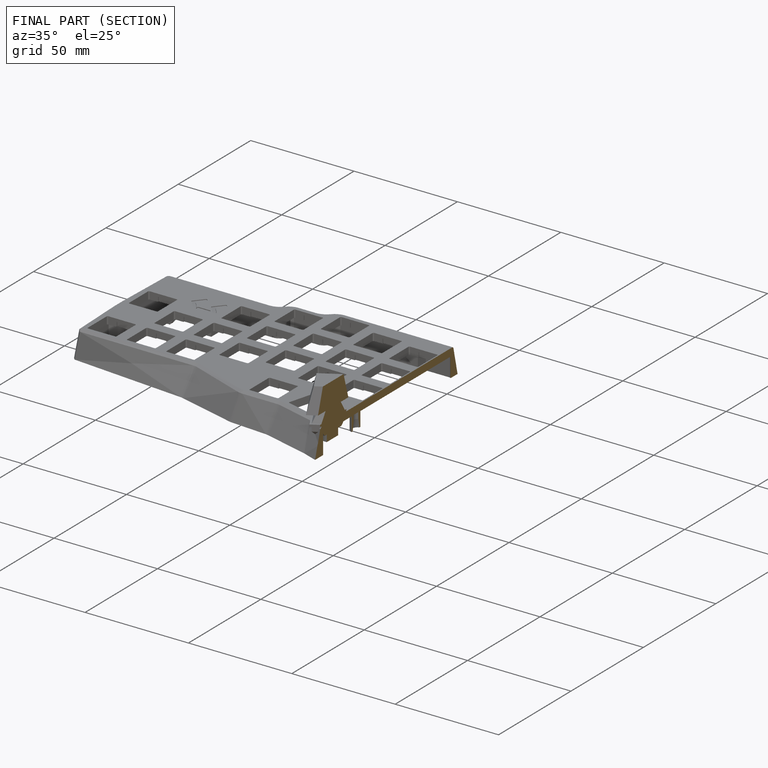
[diagram: finished part — half-section view (interior)]
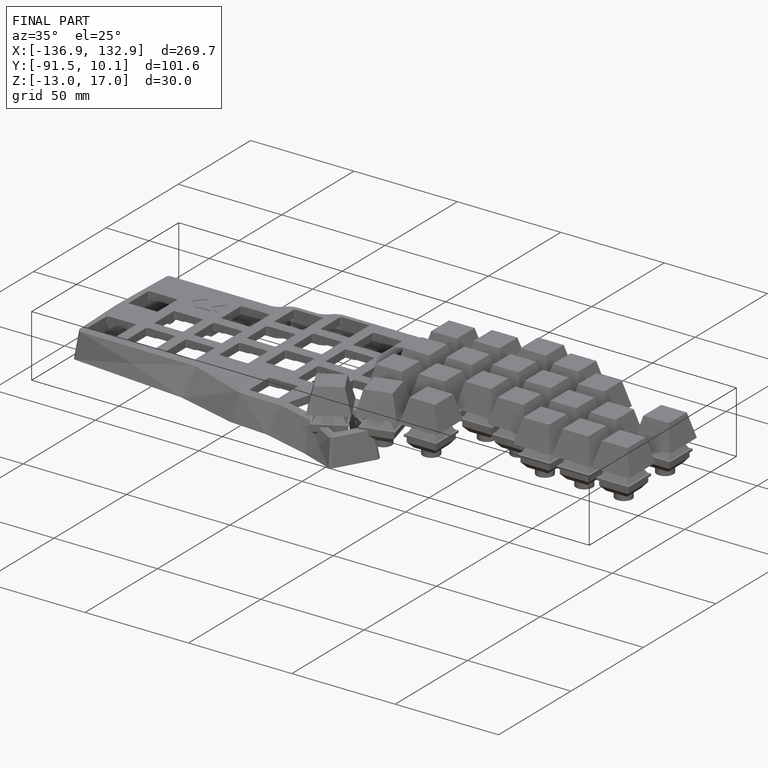
[diagram: finished part — iso view with bounding-box wireframe]
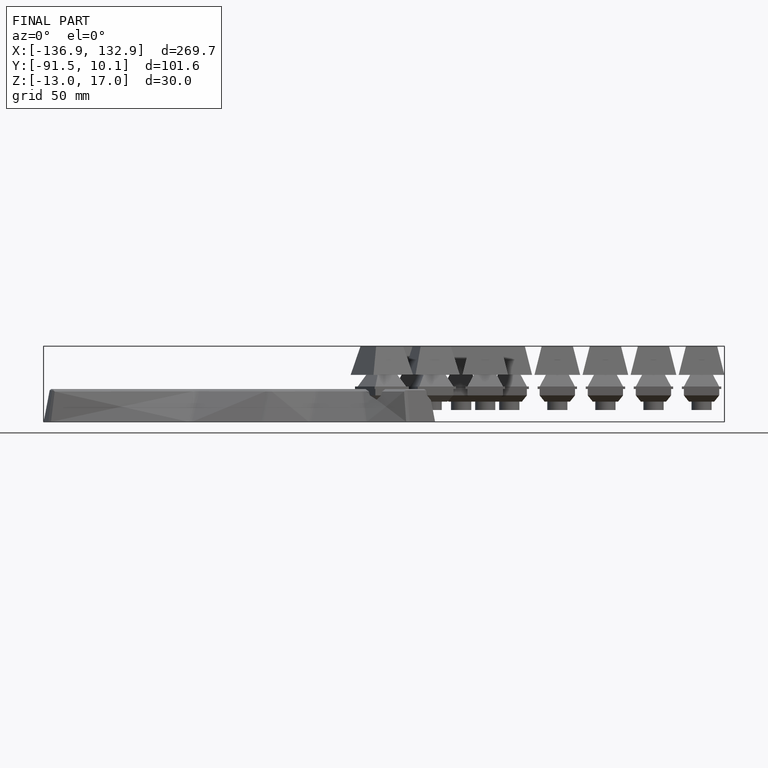
[diagram: finished part — front view with bounding-box wireframe]
